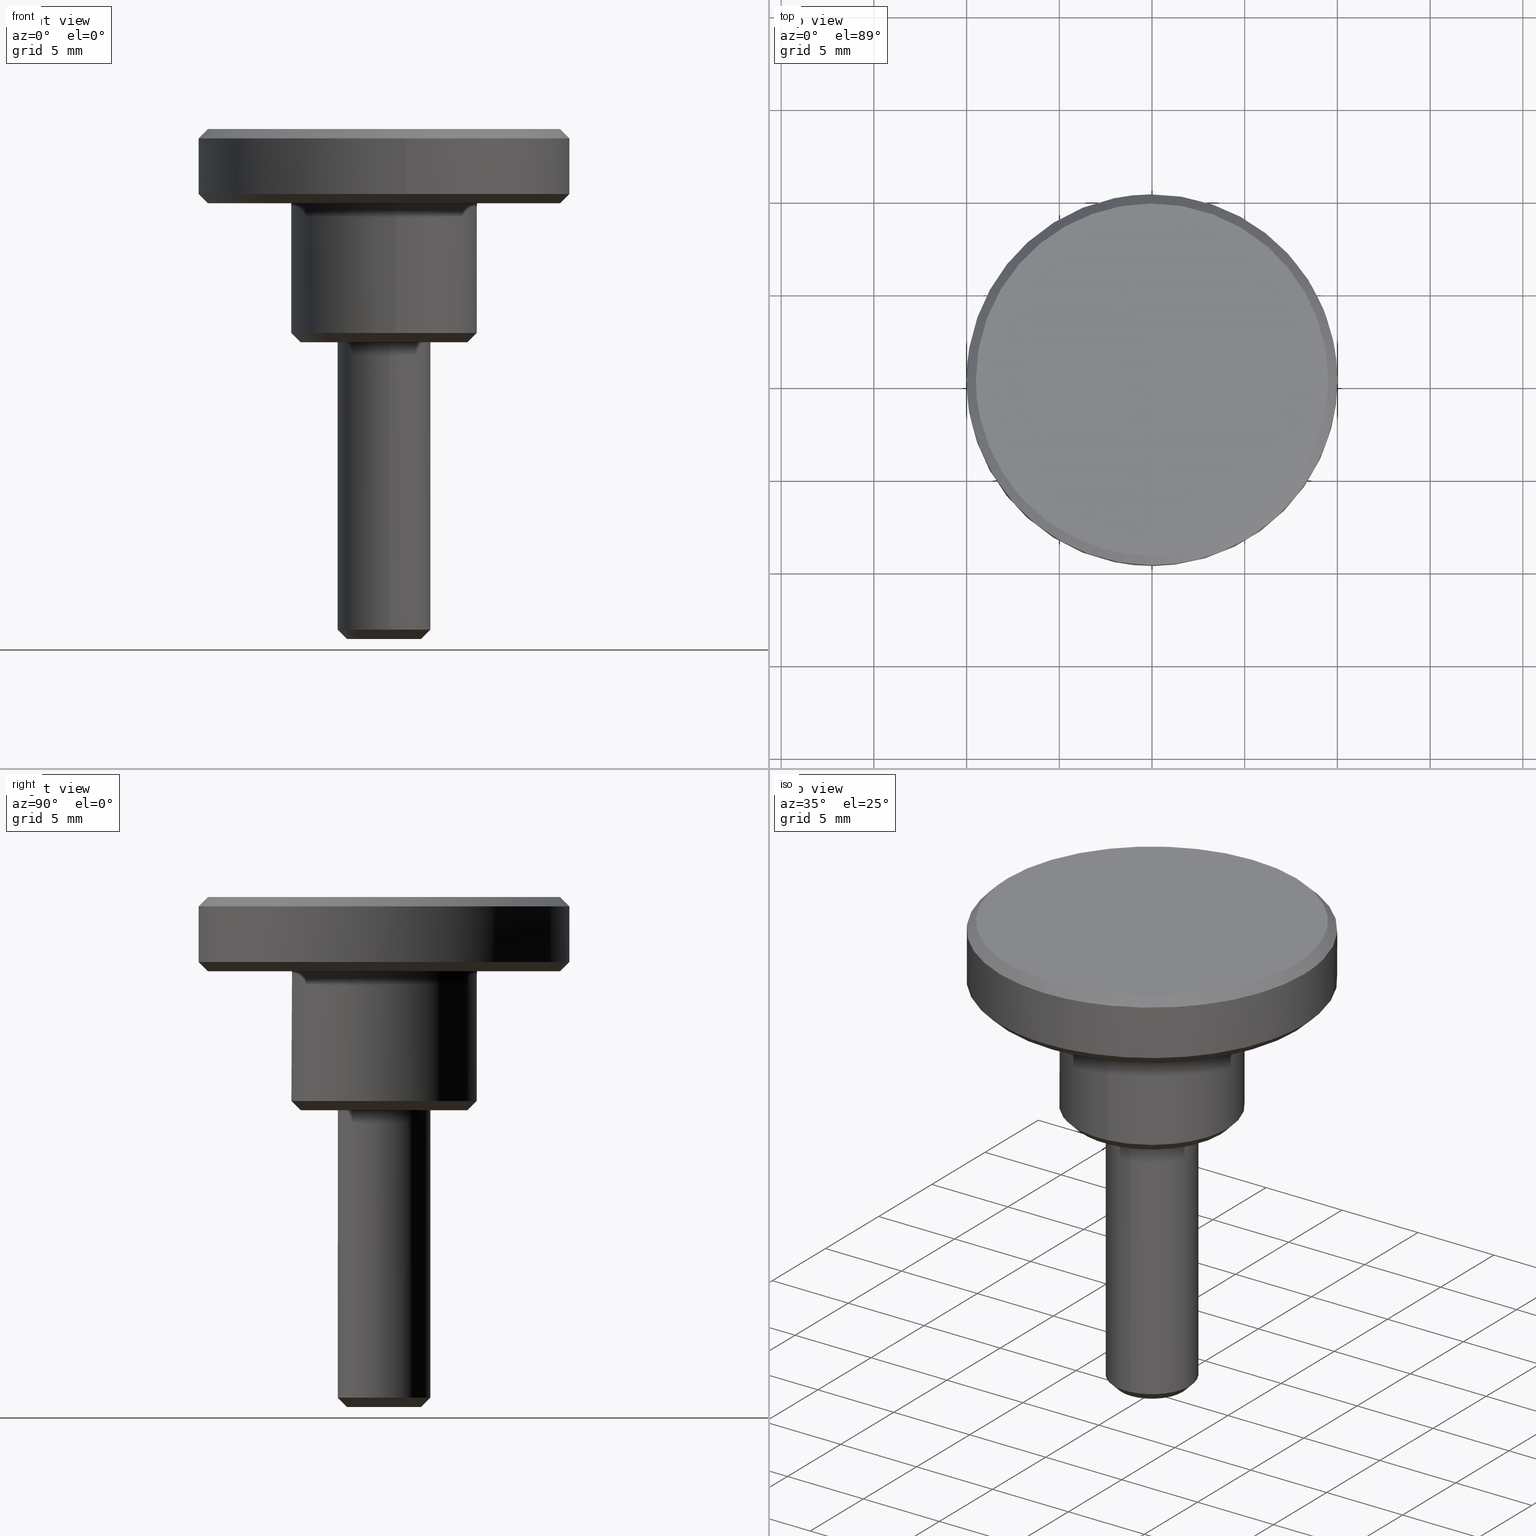
[diagram: canonical four-view strip — front | top / right | iso, engineering-drawing reading convention]
A machine part, canonical four-view strip (front | top / right | iso — engineering-drawing reading convention). The complete STEP part file that produces these views, byte-faithful:
ISO-10303-21;
HEADER;
/****************************************************************
 * Generated by software with PDE/Lib inside                    *
 * PDElib Version 4.4.1-0003, patched  Thursday August 19 11:58 *
 * International Technegroup Inc. (www.iti-oh.com)              *
 ****************************************************************/
FILE_DESCRIPTION((''),'2;1');
FILE_NAME('','2005-07-15T10:50:17',(''),(''),'','CADfix','');
FILE_SCHEMA(('AUTOMOTIVE_DESIGN'));
ENDSEC;
DATA;
#5=APPLICATION_CONTEXT('automotive design');
#6=APPLICATION_PROTOCOL_DEFINITION('Draft International Standard','automotive_design',1998,#5);
#7=PRODUCT_CONTEXT('None',#5,'mechanical');
#8=PRODUCT('knob','','None',(#7));
#9=PRODUCT_RELATED_PRODUCT_CATEGORY('part','description',(#8));
#10=PRODUCT_DEFINITION_FORMATION('None','None',#8);
#11=PRODUCT_DEFINITION_CONTEXT('part definition',#5,'design');
#12=PRODUCT_DEFINITION('None','None',#10,#11);
#18=(NAMED_UNIT(*)PLANE_ANGLE_UNIT()SI_UNIT($,.RADIAN.));
#19=DIMENSIONAL_EXPONENTS(0.0,0.0,0.0,0.0,0.0,0.0,0.0);
#20=PLANE_ANGLE_MEASURE_WITH_UNIT(PLANE_ANGLE_MEASURE(0.017453292500000),#18);
#24=(CONVERSION_BASED_UNIT('DEGREE',#20)NAMED_UNIT(#19)PLANE_ANGLE_UNIT());
#28=(NAMED_UNIT(*)SI_UNIT($,.STERADIAN.)SOLID_ANGLE_UNIT());
#32=(LENGTH_UNIT()NAMED_UNIT(*)SI_UNIT(.MILLI.,.METRE.));
#34=UNCERTAINTY_MEASURE_WITH_UNIT(LENGTH_MEASURE(0.001000000000000),#32,'DISTANCE_ACCURACY_VALUE','');
#36=(GEOMETRIC_REPRESENTATION_CONTEXT(3)GLOBAL_UNCERTAINTY_ASSIGNED_CONTEXT((#34))GLOBAL_UNIT_ASSIGNED_CONTEXT((#24,#28,#32))REPRESENTATION_CONTEXT('None','None'));
#37=AXIS2_PLACEMENT_3D('',#38,#39,#40);
#38=CARTESIAN_POINT('',(0.0,0.0,0.0));
#39=DIRECTION('',(0.0,0.0,1.0));
#40=DIRECTION('',(1.0,0.0,0.0));
#41=ADVANCED_BREP_SHAPE_REPRESENTATION('',(#37,#1267),#36);
#42=PRODUCT_DEFINITION_SHAPE('','',#12);
#43=SHAPE_DEFINITION_REPRESENTATION(#42,#41);
#44=CARTESIAN_POINT('',(-0.803378171075901,-1.817894321526624,-16.012499999999996));
#45=CARTESIAN_POINT('',(-0.411299006455437,-1.991165032843460,-16.012499999999996));
#46=CARTESIAN_POINT('',(0.017343989303018,-1.987424322090042,-16.012499999999999));
#47=CARTESIAN_POINT('',(2.004768311393060,-1.970080332787024,-16.012499999999996));
#48=CARTESIAN_POINT('',(1.987424322090042,0.017343989303018,-16.012499999999999));
#49=CARTESIAN_POINT('',(1.970080332787024,2.004768311393060,-16.012499999999996));
#50=CARTESIAN_POINT('',(-0.017343989303018,1.987424322090042,-16.012499999999999));
#51=CARTESIAN_POINT('',(-1.015717590192008,-2.298378653992966,-15.487187500000005));
#52=CARTESIAN_POINT('',(-0.520008696683662,-2.517446230989608,-15.487187500000001));
#53=CARTESIAN_POINT('',(0.021928147482007,-2.512716819799633,-15.487187499999999));
#54=CARTESIAN_POINT('',(2.534644967281641,-2.490788672317626,-15.487187499999992));
#55=CARTESIAN_POINT('',(2.512716819799633,0.021928147482007,-15.487187499999999));
#56=CARTESIAN_POINT('',(2.490788672317626,2.534644967281641,-15.487187499999992));
#57=CARTESIAN_POINT('',(-0.021928147482007,2.512716819799633,-15.487187499999999));
#65=(BOUNDED_SURFACE()B_SPLINE_SURFACE(2,1,((#44,#51),(#45,#52),(#46,#53),(#47,#54),(#48,#55),(#49,#56),(#50,#57)),.UNSPECIFIED.,.F.,.F.,.U.)B_SPLINE_SURFACE_WITH_KNOTS((3,2,2,3),(2,2),(0.0,1.165741939264695,5.329106008067175,9.492470076869655),(0.0,1.0),.UNSPECIFIED.)GEOMETRIC_REPRESENTATION_ITEM()RATIONAL_B_SPLINE_SURFACE(((0.881905454174416,0.881905454174416),(0.917989898732233,0.917989898732233),(1.0,1.0),(0.707106781186548,0.707106781186548),(1.0,1.0),(0.707106781186548,0.707106781186548),(1.0,1.0)))REPRESENTATION_ITEM('')SURFACE());
#66=CARTESIAN_POINT('',(-1.010538580020176,-2.286659523915468,-15.499999999995470));
#67=VERTEX_POINT('',#66);
#68=CARTESIAN_POINT('',(0.310320005219403,-2.480665534561366,-15.500000000000000));
#69=VERTEX_POINT('',#68);
#70=CARTESIAN_POINT('',(-1.010538580020176,-2.286659523915468,-15.499999999995474));
#71=CARTESIAN_POINT('',(-0.527789043185289,-2.500000000000000,-15.499999999999996));
#72=CARTESIAN_POINT('',(0.0,-2.500000000000000,-15.500000000000000));
#73=CARTESIAN_POINT('',(0.155762318853798,-2.500000000000000,-15.499999999999998));
#74=CARTESIAN_POINT('',(0.310320005219403,-2.480665534561366,-15.500000000000004));
#82=(BOUNDED_CURVE()B_SPLINE_CURVE(2,(#70,#71,#72,#73,#74),.UNSPECIFIED.,.F.,.U.)B_SPLINE_CURVE_WITH_KNOTS((3,2,3),(0.181361578453286,0.250000000000000,0.271473928973398),.UNSPECIFIED.)CURVE()GEOMETRIC_REPRESENTATION_ITEM()RATIONAL_B_SPLINE_CURVE((0.883326595744863,0.919585087115634,1.0,0.974841727289641,0.954005430269486))REPRESENTATION_ITEM(''));
#83=EDGE_CURVE('',#67,#69,#82,.T.);
#84=ORIENTED_EDGE('',*,*,#83,.F.);
#85=CARTESIAN_POINT('',(-0.808430864043085,-1.829327619123057,-15.999999999994030));
#86=VERTEX_POINT('',#85);
#87=CARTESIAN_POINT('',(-0.808430864043085,-1.829327619123057,-15.999999999994030));
#88=CARTESIAN_POINT('',(-1.010538580020176,-2.286659523915468,-15.499999999995470));
#89=QUASI_UNIFORM_CURVE('',1,(#87,#88),.UNSPECIFIED.,.F.,.U.);
#90=EDGE_CURVE('',#86,#67,#89,.T.);
#91=ORIENTED_EDGE('',*,*,#90,.F.);
#92=CARTESIAN_POINT('',(2.0,0.0,-16.0));
#93=VERTEX_POINT('',#92);
#94=CARTESIAN_POINT('',(2.0,0.0,-16.0));
#95=CARTESIAN_POINT('',(2.000000000000000,-2.000000000000000,-15.999999999999998));
#96=CARTESIAN_POINT('',(0.0,-2.0,-16.0));
#97=CARTESIAN_POINT('',(-0.422231234577905,-2.000000000000000,-16.000000000000004));
#98=CARTESIAN_POINT('',(-0.808430864043085,-1.829327619123057,-15.999999999994030));
#106=(BOUNDED_CURVE()B_SPLINE_CURVE(2,(#94,#95,#96,#97,#98),.UNSPECIFIED.,.F.,.U.)B_SPLINE_CURVE_WITH_KNOTS((3,2,3),(0.500000000000000,0.750000000000000,0.818638421551150),.UNSPECIFIED.)CURVE()GEOMETRIC_REPRESENTATION_ITEM()RATIONAL_B_SPLINE_CURVE((1.0,0.707106781186548,1.0,0.919585087110437,0.883326595740176))REPRESENTATION_ITEM(''));
#107=EDGE_CURVE('',#93,#86,#106,.T.);
#108=ORIENTED_EDGE('',*,*,#107,.F.);
#109=CARTESIAN_POINT('',(-0.017453071105066,1.999923846142167,-15.999999999985230));
#110=VERTEX_POINT('',#109);
#111=CARTESIAN_POINT('',(-0.017453071105066,1.999923846142167,-15.999999999985237));
#112=CARTESIAN_POINT('',(-0.008726701749599,2.000000000000000,-16.000000000000004));
#113=CARTESIAN_POINT('',(0.0,2.0,-16.0));
#114=CARTESIAN_POINT('',(2.000000000000000,2.000000000000000,-15.999999999999998));
#115=CARTESIAN_POINT('',(2.0,0.0,-16.0));
#123=(BOUNDED_CURVE()B_SPLINE_CURVE(2,(#111,#112,#113,#114,#115),.UNSPECIFIED.,.F.,.U.)B_SPLINE_CURVE_WITH_KNOTS((3,2,3),(0.248460105645955,0.250000000000000,0.500000000000000),.UNSPECIFIED.)CURVE()GEOMETRIC_REPRESENTATION_ITEM()RATIONAL_B_SPLINE_CURVE((0.996414028056301,0.998195901544045,1.0,0.707106781186548,1.0))REPRESENTATION_ITEM(''));
#124=EDGE_CURVE('',#110,#93,#123,.T.);
#125=ORIENTED_EDGE('',*,*,#124,.F.);
#126=CARTESIAN_POINT('',(-0.021816338757609,2.499904807660299,-15.500000000000000));
#127=VERTEX_POINT('',#126);
#128=CARTESIAN_POINT('',(-0.017453071105066,1.999923846142167,-15.999999999985230));
#129=CARTESIAN_POINT('',(-0.021816338757609,2.499904807660299,-15.500000000000000));
#130=QUASI_UNIFORM_CURVE('',1,(#128,#129),.UNSPECIFIED.,.F.,.U.);
#131=EDGE_CURVE('',#110,#127,#130,.T.);
#132=ORIENTED_EDGE('',*,*,#131,.T.);
#133=CARTESIAN_POINT('',(2.500000000000000,0.0,-15.500000000000000));
#134=VERTEX_POINT('',#133);
#135=CARTESIAN_POINT('',(2.500000000000000,0.0,-15.500000000000000));
#136=CARTESIAN_POINT('',(2.500000000000000,2.500000000000000,-15.500000000000004));
#137=CARTESIAN_POINT('',(0.0,2.500000000000000,-15.500000000000000));
#138=CARTESIAN_POINT('',(-0.010908377075104,2.500000000000000,-15.500000000000004));
#139=CARTESIAN_POINT('',(-0.021816338757609,2.499904807660299,-15.499999999999996));
#147=(BOUNDED_CURVE()B_SPLINE_CURVE(2,(#135,#136,#137,#138,#139),.UNSPECIFIED.,.F.,.U.)B_SPLINE_CURVE_WITH_KNOTS((3,2,3),(0.500000000000000,0.750000000000000,0.751539894338277),.UNSPECIFIED.)CURVE()GEOMETRIC_REPRESENTATION_ITEM()RATIONAL_B_SPLINE_CURVE((1.0,0.707106781186548,1.0,0.998195901562517,0.996414028092791))REPRESENTATION_ITEM(''));
#148=EDGE_CURVE('',#134,#127,#147,.T.);
#149=ORIENTED_EDGE('',*,*,#148,.F.);
#150=CARTESIAN_POINT('',(0.310320005219403,-2.480665534561366,-15.500000000000000));
#151=CARTESIAN_POINT('',(2.500000000000000,-2.206746500340018,-15.500000000000007));
#152=CARTESIAN_POINT('',(2.500000000000000,0.0,-15.500000000000000));
#160=(BOUNDED_CURVE()B_SPLINE_CURVE(2,(#150,#151,#152),.UNSPECIFIED.,.F.,.U.)B_SPLINE_CURVE_WITH_KNOTS((3,3),(0.271473928973397,0.500000000000000),.UNSPECIFIED.)CURVE()GEOMETRIC_REPRESENTATION_ITEM()RATIONAL_B_SPLINE_CURVE((0.954005430269486,0.732265053896907,1.0))REPRESENTATION_ITEM(''));
#161=EDGE_CURVE('',#69,#134,#160,.T.);
#162=ORIENTED_EDGE('',*,*,#161,.F.);
#163=EDGE_LOOP('',(#84,#91,#108,#125,#132,#149,#162));
#164=FACE_OUTER_BOUND('',#163,.T.);
#165=ADVANCED_FACE('',(#164),#65,.T.);
#166=CARTESIAN_POINT('',(-0.017343989303018,1.987424322090042,-16.012499999999999));
#167=CARTESIAN_POINT('',(-2.004768311393060,1.970080332787024,-16.012499999999996));
#168=CARTESIAN_POINT('',(-1.987424322090042,-0.017343989303018,-16.012499999999999));
#169=CARTESIAN_POINT('',(-1.976234449005829,-1.299576441141279,-16.012499999999989));
#170=CARTESIAN_POINT('',(-0.803378171075901,-1.817894321526624,-16.012499999999996));
#171=CARTESIAN_POINT('',(-0.021928147482007,2.512716819799633,-15.487187499999999));
#172=CARTESIAN_POINT('',(-2.534644967281641,2.490788672317626,-15.487187499999992));
#173=CARTESIAN_POINT('',(-2.512716819799633,-0.021928147482007,-15.487187499999999));
#174=CARTESIAN_POINT('',(-2.498569371769734,-1.643065120002641,-15.487187499999992));
#175=CARTESIAN_POINT('',(-1.015717590192008,-2.298378653992966,-15.487187500000005));
#183=(BOUNDED_SURFACE()B_SPLINE_SURFACE(2,1,((#166,#171),(#167,#172),(#168,#173),(#169,#174),(#170,#175)),.UNSPECIFIED.,.F.,.F.,.U.)B_SPLINE_SURFACE_WITH_KNOTS((3,2,3),(2,2),(0.0,4.163364068802480,7.160986198340265),(0.0,1.0),.UNSPECIFIED.)GEOMETRIC_REPRESENTATION_ITEM()RATIONAL_B_SPLINE_SURFACE(((1.0,1.0),(0.707106781186548,0.707106781186548),(1.0,1.0),(0.789116882454314,0.789116882454314),(0.881905454174416,0.881905454174416)))REPRESENTATION_ITEM('')SURFACE());
#184=CARTESIAN_POINT('',(-2.500000000000000,0.0,-15.500000000000000));
#185=VERTEX_POINT('',#184);
#186=CARTESIAN_POINT('',(-2.500000000000000,0.0,-15.500000000000000));
#187=CARTESIAN_POINT('',(-2.500000000000000,-1.628425006403278,-15.500000000000004));
#188=CARTESIAN_POINT('',(-1.010538580020176,-2.286659523915468,-15.499999999995476));
#196=(BOUNDED_CURVE()B_SPLINE_CURVE(2,(#186,#187,#188),.UNSPECIFIED.,.F.,.U.)B_SPLINE_CURVE_WITH_KNOTS((3,3),(0.0,0.181361578453286),.UNSPECIFIED.)CURVE()GEOMETRIC_REPRESENTATION_ITEM()RATIONAL_B_SPLINE_CURVE((1.0,0.787521694070914,0.883326595744862))REPRESENTATION_ITEM(''));
#197=EDGE_CURVE('',#185,#67,#196,.T.);
#198=ORIENTED_EDGE('',*,*,#197,.F.);
#199=CARTESIAN_POINT('',(-0.021816338757609,2.499904807660299,-15.499999999999996));
#200=CARTESIAN_POINT('',(-2.499999999999999,2.478278026441151,-15.499999999999998));
#201=CARTESIAN_POINT('',(-2.500000000000000,0.0,-15.500000000000000));
#209=(BOUNDED_CURVE()B_SPLINE_CURVE(2,(#199,#200,#201),.UNSPECIFIED.,.F.,.U.)B_SPLINE_CURVE_WITH_KNOTS((3,3),(0.751539894338277,1.0),.UNSPECIFIED.)CURVE()GEOMETRIC_REPRESENTATION_ITEM()RATIONAL_B_SPLINE_CURVE((0.996414028092791,0.708910879624030,1.0))REPRESENTATION_ITEM(''));
#210=EDGE_CURVE('',#127,#185,#209,.T.);
#211=ORIENTED_EDGE('',*,*,#210,.F.);
#212=ORIENTED_EDGE('',*,*,#131,.F.);
#213=CARTESIAN_POINT('',(-2.0,0.0,-16.0));
#214=VERTEX_POINT('',#213);
#215=CARTESIAN_POINT('',(-2.0,0.0,-16.0));
#216=CARTESIAN_POINT('',(-2.000000000000000,1.982622420975440,-16.000000000000004));
#217=CARTESIAN_POINT('',(-0.017453071105066,1.999923846142167,-15.999999999985228));
#225=(BOUNDED_CURVE()B_SPLINE_CURVE(2,(#215,#216,#217),.UNSPECIFIED.,.F.,.U.)B_SPLINE_CURVE_WITH_KNOTS((3,3),(0.0,0.248460105645955),.UNSPECIFIED.)CURVE()GEOMETRIC_REPRESENTATION_ITEM()RATIONAL_B_SPLINE_CURVE((1.0,0.708910879642503,0.996414028056301))REPRESENTATION_ITEM(''));
#226=EDGE_CURVE('',#214,#110,#225,.T.);
#227=ORIENTED_EDGE('',*,*,#226,.F.);
#228=CARTESIAN_POINT('',(-0.808430864043085,-1.829327619123057,-15.999999999994030));
#229=CARTESIAN_POINT('',(-2.0,-1.302740005082157,-15.999999999999995));
#230=CARTESIAN_POINT('',(-2.0,0.0,-16.0));
#238=(BOUNDED_CURVE()B_SPLINE_CURVE(2,(#228,#229,#230),.UNSPECIFIED.,.F.,.U.)B_SPLINE_CURVE_WITH_KNOTS((3,3),(0.818638421551150,1.0),.UNSPECIFIED.)CURVE()GEOMETRIC_REPRESENTATION_ITEM()RATIONAL_B_SPLINE_CURVE((0.883326595740175,0.787521694076112,1.0))REPRESENTATION_ITEM(''));
#239=EDGE_CURVE('',#86,#214,#238,.T.);
#240=ORIENTED_EDGE('',*,*,#239,.F.);
#241=ORIENTED_EDGE('',*,*,#90,.T.);
#242=EDGE_LOOP('',(#198,#211,#212,#227,#240,#241));
#243=FACE_OUTER_BOUND('',#242,.T.);
#244=ADVANCED_FACE('',(#243),#183,.T.);
#245=CARTESIAN_POINT('',(-9.242894728281831,-2.140456327958789,11.512500000000115));
#246=CARTESIAN_POINT('',(-9.496966249899218,-1.043327506833363,11.512500000000115));
#247=CARTESIAN_POINT('',(-9.487138745071267,0.082793005540822,11.512500000000120));
#248=CARTESIAN_POINT('',(-9.404345739530445,9.569931750612090,11.512500000000120));
#249=CARTESIAN_POINT('',(0.082793005540822,9.487138745071267,11.512500000000120));
#250=CARTESIAN_POINT('',(9.569931750612090,9.404345739530445,11.512500000000120));
#251=CARTESIAN_POINT('',(9.487138745071267,-0.082793005540822,11.512500000000120));
#252=CARTESIAN_POINT('',(9.404345739530445,-9.569931750612090,11.512500000000120));
#253=CARTESIAN_POINT('',(-0.082793005540822,-9.487138745071267,11.512500000000120));
#254=CARTESIAN_POINT('',(-9.754663701873520,-2.258971054154414,10.987187500000111));
#255=CARTESIAN_POINT('',(-10.022802885804440,-1.101095409962056,10.987187500000115));
#256=CARTESIAN_POINT('',(-10.012431242780981,0.087377163719812,10.987187500000120));
#257=CARTESIAN_POINT('',(-9.925054079061164,10.099808406500786,10.987187500000116));
#258=CARTESIAN_POINT('',(0.087377163719812,10.012431242780981,10.987187500000120));
#259=CARTESIAN_POINT('',(10.099808406500786,9.925054079061164,10.987187500000116));
#260=CARTESIAN_POINT('',(10.012431242780981,-0.087377163719812,10.987187500000120));
#261=CARTESIAN_POINT('',(9.925054079061164,-10.099808406500786,10.987187500000116));
#262=CARTESIAN_POINT('',(-0.087377163719812,-10.012431242780981,10.987187500000120));
#270=(BOUNDED_SURFACE()B_SPLINE_SURFACE(2,1,((#245,#254),(#246,#255),(#247,#256),(#248,#257),(#249,#258),(#250,#259),(#251,#260),(#252,#261),(#253,#262)),.UNSPECIFIED.,.F.,.F.,.U.)B_SPLINE_SURFACE_WITH_KNOTS((3,2,2,2,3),(2,2),(0.0,2.654363350399271,19.244134290394701,35.833905230390137,52.423676170385569),(0.0,1.0),.UNSPECIFIED.)GEOMETRIC_REPRESENTATION_ITEM()RATIONAL_B_SPLINE_SURFACE(((0.921270302782944,0.921270302782944),(0.953137084989848,0.953137084989848),(1.0,1.0),(0.707106781186548,0.707106781186548),(1.0,1.0),(0.707106781186548,0.707106781186548),(1.0,1.0),(0.707106781186548,0.707106781186548),(1.0,1.0)))REPRESENTATION_ITEM('')SURFACE());
#271=CARTESIAN_POINT('',(-9.742181531784189,-2.256080451091705,10.999999999998360));
#272=VERTEX_POINT('',#271);
#273=CARTESIAN_POINT('',(-10.0,0.0,11.000000000000121));
#274=VERTEX_POINT('',#273);
#275=CARTESIAN_POINT('',(-9.742181531784189,-2.256080451091705,10.999999999998366));
#276=CARTESIAN_POINT('',(-10.0,-1.142771606812818,11.000000000000115));
#277=CARTESIAN_POINT('',(-10.0,0.0,11.000000000000121));
#285=(BOUNDED_CURVE()B_SPLINE_CURVE(2,(#275,#276,#277),.UNSPECIFIED.,.F.,.U.)B_SPLINE_CURVE_WITH_KNOTS((3,3),(0.961422971784112,1.0),.UNSPECIFIED.)CURVE()GEOMETRIC_REPRESENTATION_ITEM()RATIONAL_B_SPLINE_CURVE((0.923556557441979,0.954804200134364,1.0))REPRESENTATION_ITEM(''));
#286=EDGE_CURVE('',#272,#274,#285,.T.);
#287=ORIENTED_EDGE('',*,*,#286,.F.);
#288=CARTESIAN_POINT('',(-9.255072455193631,-2.143276428548865,11.499999999997090));
#289=VERTEX_POINT('',#288);
#290=CARTESIAN_POINT('',(-9.255072455193631,-2.143276428548865,11.499999999997090));
#291=CARTESIAN_POINT('',(-9.742181531784189,-2.256080451091705,10.999999999998360));
#292=QUASI_UNIFORM_CURVE('',1,(#290,#291),.UNSPECIFIED.,.F.,.U.);
#293=EDGE_CURVE('',#289,#272,#292,.T.);
#294=ORIENTED_EDGE('',*,*,#293,.F.);
#295=CARTESIAN_POINT('',(-9.500000000000000,0.0,11.500000000000121));
#296=VERTEX_POINT('',#295);
#297=CARTESIAN_POINT('',(-9.500000000000000,0.0,11.500000000000121));
#298=CARTESIAN_POINT('',(-9.500000000000000,-1.085633026484052,11.500000000000123));
#299=CARTESIAN_POINT('',(-9.255072455193631,-2.143276428548865,11.499999999997096));
#307=(BOUNDED_CURVE()B_SPLINE_CURVE(2,(#297,#298,#299),.UNSPECIFIED.,.F.,.U.)B_SPLINE_CURVE_WITH_KNOTS((3,3),(0.500000000000000,0.538577028216291),.UNSPECIFIED.)CURVE()GEOMETRIC_REPRESENTATION_ITEM()RATIONAL_B_SPLINE_CURVE((1.0,0.954804200133892,0.923556557441326))REPRESENTATION_ITEM(''));
#308=EDGE_CURVE('',#296,#289,#307,.T.);
#309=ORIENTED_EDGE('',*,*,#308,.F.);
#310=CARTESIAN_POINT('',(9.500000000000000,0.0,11.500000000000121));
#311=VERTEX_POINT('',#310);
#312=CARTESIAN_POINT('',(9.500000000000000,0.0,11.500000000000121));
#313=CARTESIAN_POINT('',(9.500000000000000,9.500000000000000,11.500000000000119));
#314=CARTESIAN_POINT('',(0.0,9.500000000000000,11.500000000000121));
#315=CARTESIAN_POINT('',(-9.500000000000000,9.500000000000000,11.500000000000119));
#316=CARTESIAN_POINT('',(-9.500000000000000,0.0,11.500000000000121));
#324=(BOUNDED_CURVE()B_SPLINE_CURVE(2,(#312,#313,#314,#315,#316),.UNSPECIFIED.,.F.,.U.)B_SPLINE_CURVE_WITH_KNOTS((3,2,3),(0.0,0.250000000000000,0.500000000000000),.UNSPECIFIED.)CURVE()GEOMETRIC_REPRESENTATION_ITEM()RATIONAL_B_SPLINE_CURVE((1.0,0.707106781186548,1.0,0.707106781186548,1.0))REPRESENTATION_ITEM(''));
#325=EDGE_CURVE('',#311,#296,#324,.T.);
#326=ORIENTED_EDGE('',*,*,#325,.F.);
#327=CARTESIAN_POINT('',(-0.082902087263309,-9.499638269113273,11.499999999996200));
#328=VERTEX_POINT('',#327);
#329=CARTESIAN_POINT('',(-0.082902087263309,-9.499638269113273,11.499999999996199));
#330=CARTESIAN_POINT('',(-0.041451832825389,-9.500000000000002,11.500000000000121));
#331=CARTESIAN_POINT('',(0.0,-9.500000000000000,11.500000000000121));
#332=CARTESIAN_POINT('',(9.500000000000000,-9.500000000000000,11.500000000000119));
#333=CARTESIAN_POINT('',(9.500000000000000,0.0,11.500000000000121));
#341=(BOUNDED_CURVE()B_SPLINE_CURVE(2,(#329,#330,#331,#332,#333),.UNSPECIFIED.,.F.,.U.)B_SPLINE_CURVE_WITH_KNOTS((3,2,3),(0.748460105663948,0.750000000000000,1.0),.UNSPECIFIED.)CURVE()GEOMETRIC_REPRESENTATION_ITEM()RATIONAL_B_SPLINE_CURVE((0.996414028097941,0.998195901565124,1.0,0.707106781186548,1.0))REPRESENTATION_ITEM(''));
#342=EDGE_CURVE('',#328,#311,#341,.T.);
#343=ORIENTED_EDGE('',*,*,#342,.F.);
#344=CARTESIAN_POINT('',(-0.087265355018777,-9.999619230646168,10.999999999995360));
#345=VERTEX_POINT('',#344);
#346=CARTESIAN_POINT('',(-0.082902087263309,-9.499638269113273,11.499999999996200));
#347=CARTESIAN_POINT('',(-0.087265355018777,-9.999619230646168,10.999999999995360));
#348=QUASI_UNIFORM_CURVE('',1,(#346,#347),.UNSPECIFIED.,.F.,.U.);
#349=EDGE_CURVE('',#328,#345,#348,.T.);
#350=ORIENTED_EDGE('',*,*,#349,.T.);
#351=CARTESIAN_POINT('',(1.241277931634470,-9.922662399599856,11.000000000000160));
#352=VERTEX_POINT('',#351);
#353=CARTESIAN_POINT('',(1.241277931634471,-9.922662399599856,11.000000000000162));
#354=CARTESIAN_POINT('',(0.623048218524957,-10.0,11.000000000000123));
#355=CARTESIAN_POINT('',(0.0,-10.0,11.000000000000121));
#356=CARTESIAN_POINT('',(-0.043633508242023,-10.0,11.000000000000121));
#357=CARTESIAN_POINT('',(-0.087265355018777,-9.999619230646168,10.999999999995355));
#365=(BOUNDED_CURVE()B_SPLINE_CURVE(2,(#353,#354,#355,#356,#357),.UNSPECIFIED.,.F.,.U.)B_SPLINE_CURVE_WITH_KNOTS((3,2,3),(0.728526106536804,0.750000000000000,0.751539894336220),.UNSPECIFIED.)CURVE()GEOMETRIC_REPRESENTATION_ITEM()RATIONAL_B_SPLINE_CURVE((0.954005499181070,0.974841768892429,1.0,0.998195901564927,0.996414028097552))REPRESENTATION_ITEM(''));
#366=EDGE_CURVE('',#352,#345,#365,.T.);
#367=ORIENTED_EDGE('',*,*,#366,.F.);
#368=CARTESIAN_POINT('',(10.0,0.0,11.000000000000121));
#369=VERTEX_POINT('',#368);
#370=CARTESIAN_POINT('',(10.0,0.0,11.000000000000121));
#371=CARTESIAN_POINT('',(10.0,-8.826987874462516,11.000000000000121));
#372=CARTESIAN_POINT('',(1.241277931634471,-9.922662399599856,11.000000000000162));
#380=(BOUNDED_CURVE()B_SPLINE_CURVE(2,(#370,#371,#372),.UNSPECIFIED.,.F.,.U.)B_SPLINE_CURVE_WITH_KNOTS((3,3),(0.500000000000000,0.728526106536804),.UNSPECIFIED.)CURVE()GEOMETRIC_REPRESENTATION_ITEM()RATIONAL_B_SPLINE_CURVE((1.0,0.732265012294119,0.954005499181070))REPRESENTATION_ITEM(''));
#381=EDGE_CURVE('',#369,#352,#380,.T.);
#382=ORIENTED_EDGE('',*,*,#381,.F.);
#383=CARTESIAN_POINT('',(-0.087256569852172,9.999619307300673,11.000000000000121));
#384=VERTEX_POINT('',#383);
#385=CARTESIAN_POINT('',(-0.087256569852172,9.999619307300673,11.000000000000124));
#386=CARTESIAN_POINT('',(-0.043629115390380,9.999999999999998,11.000000000000119));
#387=CARTESIAN_POINT('',(0.0,10.0,11.000000000000121));
#388=CARTESIAN_POINT('',(10.000000000000002,10.000000000000002,11.000000000000119));
#389=CARTESIAN_POINT('',(10.0,0.0,11.000000000000121));
#397=(BOUNDED_CURVE()B_SPLINE_CURVE(2,(#385,#386,#387,#388,#389),.UNSPECIFIED.,.F.,.U.)B_SPLINE_CURVE_WITH_KNOTS((3,2,3),(0.248460260414681,0.250000000000000,0.500000000000000),.UNSPECIFIED.)CURVE()GEOMETRIC_REPRESENTATION_ITEM()RATIONAL_B_SPLINE_CURVE((0.996414386234719,0.998196082866885,1.0,0.707106781186548,1.0))REPRESENTATION_ITEM(''));
#398=EDGE_CURVE('',#384,#369,#397,.T.);
#399=ORIENTED_EDGE('',*,*,#398,.F.);
#400=CARTESIAN_POINT('',(-10.0,0.0,11.000000000000121));
#401=CARTESIAN_POINT('',(-10.000000000000002,9.913120815416164,11.000000000000119));
#402=CARTESIAN_POINT('',(-0.087256569852172,9.999619307300673,11.000000000000124));
#410=(BOUNDED_CURVE()B_SPLINE_CURVE(2,(#400,#401,#402),.UNSPECIFIED.,.F.,.U.)B_SPLINE_CURVE_WITH_KNOTS((3,3),(0.0,0.248460260414681),.UNSPECIFIED.)CURVE()GEOMETRIC_REPRESENTATION_ITEM()RATIONAL_B_SPLINE_CURVE((1.0,0.708910698319662,0.996414386234719))REPRESENTATION_ITEM(''));
#411=EDGE_CURVE('',#274,#384,#410,.T.);
#412=ORIENTED_EDGE('',*,*,#411,.F.);
#413=EDGE_LOOP('',(#287,#294,#309,#326,#343,#350,#367,#382,#399,#412));
#414=FACE_OUTER_BOUND('',#413,.T.);
#415=ADVANCED_FACE('',(#414),#270,.T.);
#416=CARTESIAN_POINT('',(-0.082793005540822,-9.487138745071267,11.512500000000120));
#417=CARTESIAN_POINT('',(-7.556664895367825,-9.421915253203679,11.512500000000120));
#418=CARTESIAN_POINT('',(-9.242894728281831,-2.140456327958789,11.512500000000115));
#419=CARTESIAN_POINT('',(-0.087377163719812,-10.012431242780981,10.987187500000120));
#420=CARTESIAN_POINT('',(-7.975069167077800,-9.943596397493447,10.987187500000118));
#421=CARTESIAN_POINT('',(-9.754663701873520,-2.258971054154414,10.987187500000111));
#429=(BOUNDED_SURFACE()B_SPLINE_SURFACE(2,1,((#416,#419),(#417,#420),(#418,#421)),.UNSPECIFIED.,.F.,.F.,.U.)B_SPLINE_SURFACE_WITH_KNOTS((3,3),(2,2),(0.0,13.874467244310500),(0.0,1.0),.UNSPECIFIED.)GEOMETRIC_REPRESENTATION_ITEM()RATIONAL_B_SPLINE_SURFACE(((1.0,1.0),(0.753969696196700,0.753969696196700),(0.921270302782944,0.921270302782944)))REPRESENTATION_ITEM('')SURFACE());
#430=CARTESIAN_POINT('',(-0.087265355018777,-9.999619230646168,10.999999999995355));
#431=CARTESIAN_POINT('',(-7.964864184829107,-9.930872467089873,11.000000000000121));
#432=CARTESIAN_POINT('',(-9.742181531784189,-2.256080451091705,10.999999999998369));
#440=(BOUNDED_CURVE()B_SPLINE_CURVE(2,(#430,#431,#432),.UNSPECIFIED.,.F.,.U.)B_SPLINE_CURVE_WITH_KNOTS((3,3),(0.751539894336220,0.961422971784112),.UNSPECIFIED.)CURVE()GEOMETRIC_REPRESENTATION_ITEM()RATIONAL_B_SPLINE_CURVE((0.996414028097553,0.753549905437383,0.923556557441980))REPRESENTATION_ITEM(''));
#441=EDGE_CURVE('',#345,#272,#440,.T.);
#442=ORIENTED_EDGE('',*,*,#441,.F.);
#443=ORIENTED_EDGE('',*,*,#349,.F.);
#444=CARTESIAN_POINT('',(-9.255072455193629,-2.143276428548865,11.499999999997089));
#445=CARTESIAN_POINT('',(-7.566620975566935,-9.434328843742732,11.500000000000121));
#446=CARTESIAN_POINT('',(-0.082902087263309,-9.499638269113273,11.499999999996191));
#454=(BOUNDED_CURVE()B_SPLINE_CURVE(2,(#444,#445,#446),.UNSPECIFIED.,.F.,.U.)B_SPLINE_CURVE_WITH_KNOTS((3,3),(0.538577028216292,0.748460105663949),.UNSPECIFIED.)CURVE()GEOMETRIC_REPRESENTATION_ITEM()RATIONAL_B_SPLINE_CURVE((0.923556557441325,0.753549905437714,0.996414028097943))REPRESENTATION_ITEM(''));
#455=EDGE_CURVE('',#289,#328,#454,.T.);
#456=ORIENTED_EDGE('',*,*,#455,.F.);
#457=ORIENTED_EDGE('',*,*,#293,.T.);
#458=EDGE_LOOP('',(#442,#443,#456,#457));
#459=FACE_OUTER_BOUND('',#458,.T.);
#460=ADVANCED_FACE('',(#459),#429,.T.);
#461=CARTESIAN_POINT('',(7.768992244344123,-5.445678631476790,7.487500000000110));
#462=CARTESIAN_POINT('',(9.513663739762109,-2.956670330751032,7.487500000000109));
#463=CARTESIAN_POINT('',(9.487138745071432,0.082793005540823,7.487500000000109));
#464=CARTESIAN_POINT('',(9.404345739530609,9.569931750612255,7.487500000000108));
#465=CARTESIAN_POINT('',(-0.082793005540823,9.487138745071432,7.487500000000109));
#466=CARTESIAN_POINT('',(-9.569931750612255,9.404345739530609,7.487500000000108));
#467=CARTESIAN_POINT('',(-9.487138745071432,-0.082793005540823,7.487500000000109));
#468=CARTESIAN_POINT('',(-9.404345739530609,-9.569931750612255,7.487500000000108));
#469=CARTESIAN_POINT('',(0.082793005540823,-9.487138745071432,7.487500000000109));
#470=CARTESIAN_POINT('',(8.199152849177494,-5.747199902211691,8.012812500000123));
#471=CARTESIAN_POINT('',(10.040424897421483,-3.120377933715197,8.012812500000122));
#472=CARTESIAN_POINT('',(10.012431242781030,0.087377163719812,8.012812500000122));
#473=CARTESIAN_POINT('',(9.925054079061221,10.099808406500847,8.012812500000122));
#474=CARTESIAN_POINT('',(-0.087377163719812,10.012431242781030,8.012812500000122));
#475=CARTESIAN_POINT('',(-10.099808406500847,9.925054079061221,8.012812500000122));
#476=CARTESIAN_POINT('',(-10.012431242781030,-0.087377163719812,8.012812500000122));
#477=CARTESIAN_POINT('',(-9.925054079061221,-10.099808406500847,8.012812500000122));
#478=CARTESIAN_POINT('',(0.087377163719812,-10.012431242781030,8.012812500000122));
#486=(BOUNDED_SURFACE()B_SPLINE_SURFACE(2,1,((#461,#470),(#462,#471),(#463,#472),(#464,#473),(#465,#474),(#466,#475),(#467,#476),(#468,#477),(#469,#478)),.UNSPECIFIED.,.F.,.F.,.U.)B_SPLINE_SURFACE_WITH_KNOTS((3,2,2,2,3),(2,2),(0.0,6.635908375998210,23.225679315993730,39.815450255989262,56.405221195984780),(0.0,1.0),.UNSPECIFIED.)GEOMETRIC_REPRESENTATION_ITEM()RATIONAL_B_SPLINE_SURFACE(((0.859411254969543,0.859411254969543),(0.882842712474619,0.882842712474619),(1.0,1.0),(0.707106781186548,0.707106781186548),(1.0,1.0),(0.707106781186548,0.707106781186548),(1.0,1.0),(0.707106781186548,0.707106781186548),(1.0,1.0)))REPRESENTATION_ITEM('')SURFACE());
#487=CARTESIAN_POINT('',(9.500000000000000,0.0,7.500000000000110));
#488=VERTEX_POINT('',#487);
#489=CARTESIAN_POINT('',(7.779228070751314,-5.452853438635381,7.500000000000211));
#490=VERTEX_POINT('',#489);
#491=CARTESIAN_POINT('',(9.500000000000000,0.0,7.500000000000110));
#492=CARTESIAN_POINT('',(9.500000000000000,-2.997941080177659,7.500000000000109));
#493=CARTESIAN_POINT('',(7.779228070751313,-5.452853438635380,7.500000000000211));
#501=(BOUNDED_CURVE()B_SPLINE_CURVE(2,(#491,#492,#493),.UNSPECIFIED.,.F.,.U.)B_SPLINE_CURVE_WITH_KNOTS((3,3),(0.0,0.098673726202969),.UNSPECIFIED.)CURVE()GEOMETRIC_REPRESENTATION_ITEM()RATIONAL_B_SPLINE_CURVE((1.0,0.884396538880381,0.860049271925824))REPRESENTATION_ITEM(''));
#502=EDGE_CURVE('',#488,#490,#501,.T.);
#503=ORIENTED_EDGE('',*,*,#502,.F.);
#504=CARTESIAN_POINT('',(-9.500000000000000,0.0,7.500000000000110));
#505=VERTEX_POINT('',#504);
#506=CARTESIAN_POINT('',(-9.500000000000000,0.0,7.500000000000110));
#507=CARTESIAN_POINT('',(-9.500000000000000,9.500000000000000,7.500000000000110));
#508=CARTESIAN_POINT('',(0.0,9.500000000000000,7.500000000000110));
#509=CARTESIAN_POINT('',(9.500000000000000,9.500000000000000,7.500000000000110));
#510=CARTESIAN_POINT('',(9.500000000000000,0.0,7.500000000000110));
#518=(BOUNDED_CURVE()B_SPLINE_CURVE(2,(#506,#507,#508,#509,#510),.UNSPECIFIED.,.F.,.U.)B_SPLINE_CURVE_WITH_KNOTS((3,2,3),(0.500000000000000,0.750000000000000,1.0),.UNSPECIFIED.)CURVE()GEOMETRIC_REPRESENTATION_ITEM()RATIONAL_B_SPLINE_CURVE((1.0,0.707106781186548,1.0,0.707106781186548,1.0))REPRESENTATION_ITEM(''));
#519=EDGE_CURVE('',#505,#488,#518,.T.);
#520=ORIENTED_EDGE('',*,*,#519,.F.);
#521=CARTESIAN_POINT('',(0.082902087263308,-9.499638269113314,7.500000000003994));
#522=VERTEX_POINT('',#521);
#523=CARTESIAN_POINT('',(0.082902087263308,-9.499638269113314,7.500000000003994));
#524=CARTESIAN_POINT('',(0.041451832825388,-9.500000000000000,7.500000000000110));
#525=CARTESIAN_POINT('',(0.0,-9.500000000000000,7.500000000000110));
#526=CARTESIAN_POINT('',(-9.500000000000000,-9.500000000000000,7.500000000000110));
#527=CARTESIAN_POINT('',(-9.500000000000000,0.0,7.500000000000110));
#535=(BOUNDED_CURVE()B_SPLINE_CURVE(2,(#523,#524,#525,#526,#527),.UNSPECIFIED.,.F.,.U.)B_SPLINE_CURVE_WITH_KNOTS((3,2,3),(0.248460105663948,0.250000000000000,0.500000000000000),.UNSPECIFIED.)CURVE()GEOMETRIC_REPRESENTATION_ITEM()RATIONAL_B_SPLINE_CURVE((0.996414028097941,0.998195901565124,1.0,0.707106781186548,1.0))REPRESENTATION_ITEM(''));
#536=EDGE_CURVE('',#522,#505,#535,.T.);
#537=ORIENTED_EDGE('',*,*,#536,.F.);
#538=CARTESIAN_POINT('',(0.087265354983874,-9.999619230641745,8.000000000000121));
#539=VERTEX_POINT('',#538);
#540=CARTESIAN_POINT('',(0.082902087263308,-9.499638269113314,7.500000000003994));
#541=CARTESIAN_POINT('',(0.087265354983874,-9.999619230641745,8.000000000000121));
#542=QUASI_UNIFORM_CURVE('',1,(#540,#541),.UNSPECIFIED.,.F.,.U.);
#543=EDGE_CURVE('',#522,#539,#542,.T.);
#544=ORIENTED_EDGE('',*,*,#543,.T.);
#545=CARTESIAN_POINT('',(-10.0,0.0,8.000000000000119));
#546=VERTEX_POINT('',#545);
#547=CARTESIAN_POINT('',(-10.0,0.0,8.000000000000119));
#548=CARTESIAN_POINT('',(-10.000000000000002,-10.000000000000002,8.000000000000119));
#549=CARTESIAN_POINT('',(0.0,-10.0,8.000000000000119));
#550=CARTESIAN_POINT('',(0.043633508207148,-10.0,8.000000000000119));
#551=CARTESIAN_POINT('',(0.087265354983874,-9.999619230641745,8.000000000000121));
#559=(BOUNDED_CURVE()B_SPLINE_CURVE(2,(#547,#548,#549,#550,#551),.UNSPECIFIED.,.F.,.U.)B_SPLINE_CURVE_WITH_KNOTS((3,2,3),(0.0,0.250000000000000,0.251539894334992),.UNSPECIFIED.)CURVE()GEOMETRIC_REPRESENTATION_ITEM()RATIONAL_B_SPLINE_CURVE((1.0,0.707106781186548,1.0,0.998195901566367,0.996414028100395))REPRESENTATION_ITEM(''));
#560=EDGE_CURVE('',#546,#539,#559,.T.);
#561=ORIENTED_EDGE('',*,*,#560,.F.);
#562=CARTESIAN_POINT('',(-0.087256366048750,9.999619309078877,8.000000000000119));
#563=VERTEX_POINT('',#562);
#564=CARTESIAN_POINT('',(-0.087256366048750,9.999619309078877,8.000000000000119));
#565=CARTESIAN_POINT('',(-10.0,9.913121017464341,8.000000000000119));
#566=CARTESIAN_POINT('',(-10.0,0.0,8.000000000000119));
#574=(BOUNDED_CURVE()B_SPLINE_CURVE(2,(#564,#565,#566),.UNSPECIFIED.,.F.,.U.)B_SPLINE_CURVE_WITH_KNOTS((3,3),(0.751539735995331,1.0),.UNSPECIFIED.)CURVE()GEOMETRIC_REPRESENTATION_ITEM()RATIONAL_B_SPLINE_CURVE((0.996414394542968,0.708910694113730,1.0))REPRESENTATION_ITEM(''));
#575=EDGE_CURVE('',#563,#546,#574,.T.);
#576=ORIENTED_EDGE('',*,*,#575,.F.);
#577=CARTESIAN_POINT('',(10.0,0.0,8.000000000000119));
#578=VERTEX_POINT('',#577);
#579=CARTESIAN_POINT('',(10.0,0.0,8.000000000000119));
#580=CARTESIAN_POINT('',(10.000000000000002,10.000000000000002,8.000000000000119));
#581=CARTESIAN_POINT('',(0.0,10.0,8.000000000000119));
#582=CARTESIAN_POINT('',(-0.043629013482850,10.000000000000002,8.000000000000119));
#583=CARTESIAN_POINT('',(-0.087256366048750,9.999619309078877,8.000000000000119));
#591=(BOUNDED_CURVE()B_SPLINE_CURVE(2,(#579,#580,#581,#582,#583),.UNSPECIFIED.,.F.,.U.)B_SPLINE_CURVE_WITH_KNOTS((3,2,3),(0.500000000000000,0.750000000000000,0.751539735995331),.UNSPECIFIED.)CURVE()GEOMETRIC_REPRESENTATION_ITEM()RATIONAL_B_SPLINE_CURVE((1.0,0.707106781186548,1.0,0.998196087072818,0.996414394542968))REPRESENTATION_ITEM(''));
#592=EDGE_CURVE('',#578,#563,#591,.T.);
#593=ORIENTED_EDGE('',*,*,#592,.F.);
#594=CARTESIAN_POINT('',(8.188661127107476,-5.739845724878030,8.000000000000172));
#595=VERTEX_POINT('',#594);
#596=CARTESIAN_POINT('',(8.188661127107476,-5.739845724878030,8.000000000000172));
#597=CARTESIAN_POINT('',(10.0,-3.155727452816878,8.000000000000119));
#598=CARTESIAN_POINT('',(10.0,0.0,8.000000000000119));
#606=(BOUNDED_CURVE()B_SPLINE_CURVE(2,(#596,#597,#598),.UNSPECIFIED.,.F.,.U.)B_SPLINE_CURVE_WITH_KNOTS((3,3),(0.401326273797079,0.500000000000000),.UNSPECIFIED.)CURVE()GEOMETRIC_REPRESENTATION_ITEM()RATIONAL_B_SPLINE_CURVE((0.860049271925847,0.884396538880436,1.0))REPRESENTATION_ITEM(''));
#607=EDGE_CURVE('',#595,#578,#606,.T.);
#608=ORIENTED_EDGE('',*,*,#607,.F.);
#609=CARTESIAN_POINT('',(7.779228070751314,-5.452853438635381,7.500000000000211));
#610=CARTESIAN_POINT('',(8.188661127107476,-5.739845724878030,8.000000000000172));
#611=QUASI_UNIFORM_CURVE('',1,(#609,#610),.UNSPECIFIED.,.F.,.U.);
#612=EDGE_CURVE('',#490,#595,#611,.T.);
#613=ORIENTED_EDGE('',*,*,#612,.F.);
#614=EDGE_LOOP('',(#503,#520,#537,#544,#561,#576,#593,#608,#613));
#615=FACE_OUTER_BOUND('',#614,.T.);
#616=ADVANCED_FACE('',(#615),#486,.T.);
#617=CARTESIAN_POINT('',(0.082793005540823,-9.487138745071432,7.487500000000109));
#618=CARTESIAN_POINT('',(4.966000022812007,-9.444523643036803,7.487500000000109));
#619=CARTESIAN_POINT('',(7.768992244344123,-5.445678631476790,7.487500000000110));
#620=CARTESIAN_POINT('',(0.087377163719812,-10.012431242781030,8.012812500000122));
#621=CARTESIAN_POINT('',(5.240962013534871,-9.967456589148242,8.012812500000123));
#622=CARTESIAN_POINT('',(8.199152849177494,-5.747199902211691,8.012812500000123));
#630=(BOUNDED_SURFACE()B_SPLINE_SURFACE(2,1,((#617,#620),(#618,#621),(#619,#622)),.UNSPECIFIED.,.F.,.F.,.U.)B_SPLINE_SURFACE_WITH_KNOTS((3,3),(2,2),(0.0,9.886015678606007),(0.0,1.0),.UNSPECIFIED.)GEOMETRIC_REPRESENTATION_ITEM()RATIONAL_B_SPLINE_SURFACE(((1.0,1.0),(0.824264068711928,0.824264068711928),(0.859411254969543,0.859411254969543)))REPRESENTATION_ITEM('')SURFACE());
#631=CARTESIAN_POINT('',(7.779228070751313,-5.452853438635380,7.500000000000211));
#632=CARTESIAN_POINT('',(4.972542842358388,-9.456967020665786,7.500000000000111));
#633=CARTESIAN_POINT('',(0.082902087263308,-9.499638269113314,7.500000000003994));
#641=(BOUNDED_CURVE()B_SPLINE_CURVE(2,(#631,#632,#633),.UNSPECIFIED.,.F.,.U.)B_SPLINE_CURVE_WITH_KNOTS((3,3),(0.098673726202969,0.248460105663948),.UNSPECIFIED.)CURVE()GEOMETRIC_REPRESENTATION_ITEM()RATIONAL_B_SPLINE_CURVE((0.860049271925824,0.823090203820994,0.996414028097941))REPRESENTATION_ITEM(''));
#642=EDGE_CURVE('',#490,#522,#641,.T.);
#643=ORIENTED_EDGE('',*,*,#642,.F.);
#644=ORIENTED_EDGE('',*,*,#612,.T.);
#645=CARTESIAN_POINT('',(1.241271863740393,-9.922663158659514,8.000000000000119));
#646=VERTEX_POINT('',#645);
#647=CARTESIAN_POINT('',(1.241271863740394,-9.922663158659514,8.000000000000121));
#648=CARTESIAN_POINT('',(5.642648680511572,-9.372074559914664,8.000000000000119));
#649=CARTESIAN_POINT('',(8.188661127107476,-5.739845724878030,8.000000000000172));
#657=(BOUNDED_CURVE()B_SPLINE_CURVE(2,(#647,#648,#649),.UNSPECIFIED.,.F.,.U.)B_SPLINE_CURVE_WITH_KNOTS((3,3),(0.271473790333043,0.401326273797079),.UNSPECIFIED.)CURVE()GEOMETRIC_REPRESENTATION_ITEM()RATIONAL_B_SPLINE_CURVE((0.954005699316995,0.828008796702347,0.860049271925848))REPRESENTATION_ITEM(''));
#658=EDGE_CURVE('',#646,#595,#657,.T.);
#659=ORIENTED_EDGE('',*,*,#658,.F.);
#660=CARTESIAN_POINT('',(0.087265354983874,-9.999619230641745,8.000000000000121));
#661=CARTESIAN_POINT('',(0.666497465630396,-9.994564348591922,8.000000000000117));
#662=CARTESIAN_POINT('',(1.241271863740394,-9.922663158659514,8.000000000000121));
#670=(BOUNDED_CURVE()B_SPLINE_CURVE(2,(#660,#661,#662),.UNSPECIFIED.,.F.,.U.)B_SPLINE_CURVE_WITH_KNOTS((3,3),(0.251539894334992,0.271473790333043),.UNSPECIFIED.)CURVE()GEOMETRIC_REPRESENTATION_ITEM()RATIONAL_B_SPLINE_CURVE((0.996414028100395,0.973347717935318,0.954005699316995))REPRESENTATION_ITEM(''));
#671=EDGE_CURVE('',#539,#646,#670,.T.);
#672=ORIENTED_EDGE('',*,*,#671,.F.);
#673=ORIENTED_EDGE('',*,*,#543,.F.);
#674=EDGE_LOOP('',(#643,#644,#659,#672,#673));
#675=FACE_OUTER_BOUND('',#674,.T.);
#676=ADVANCED_FACE('',(#675),#630,.T.);
#677=CARTESIAN_POINT('',(-1.813916751045586,-4.104553845459481,-0.012499999999999));
#678=CARTESIAN_POINT('',(-0.928656247279884,-4.495775137049067,-0.012499999999999));
#679=CARTESIAN_POINT('',(0.039160328048953,-4.487329129750467,-0.012499999999999));
#680=CARTESIAN_POINT('',(4.526489457799420,-4.448168801701514,-0.012499999999999));
#681=CARTESIAN_POINT('',(4.487329129750467,0.039160328048953,-0.012499999999999));
#682=CARTESIAN_POINT('',(4.448168801701514,4.526489457799420,-0.012499999999999));
#683=CARTESIAN_POINT('',(-0.039160328048953,4.487329129750467,-0.012499999999999));
#684=CARTESIAN_POINT('',(-2.026256170161715,-4.585038177925872,0.512812499999944));
#685=CARTESIAN_POINT('',(-1.037365937508121,-5.022056335195270,0.512812499999944));
#686=CARTESIAN_POINT('',(0.043744486227942,-5.012621627460113,0.512812499999944));
#687=CARTESIAN_POINT('',(5.056366113688056,-4.968877141232172,0.512812499999944));
#688=CARTESIAN_POINT('',(5.012621627460113,0.043744486227942,0.512812499999944));
#689=CARTESIAN_POINT('',(4.968877141232172,5.056366113688056,0.512812499999944));
#690=CARTESIAN_POINT('',(-0.043744486227942,5.012621627460113,0.512812499999944));
#698=(BOUNDED_SURFACE()B_SPLINE_SURFACE(2,1,((#677,#684),(#678,#685),(#679,#686),(#680,#687),(#681,#688),(#682,#689),(#683,#690)),.UNSPECIFIED.,.F.,.F.,.U.)B_SPLINE_SURFACE_WITH_KNOTS((3,2,2,3),(2,2),(0.0,2.325539913909386,10.631039606442901,18.936539298976420),(0.0,1.0),.UNSPECIFIED.)GEOMETRIC_REPRESENTATION_ITEM()RATIONAL_B_SPLINE_SURFACE(((0.881905454174416,0.881905454174416),(0.917989898732233,0.917989898732233),(1.0,1.0),(0.707106781186548,0.707106781186548),(1.0,1.0),(0.707106781186548,0.707106781186548),(1.0,1.0)))REPRESENTATION_ITEM('')SURFACE());
#699=CARTESIAN_POINT('',(-2.021077159957113,-4.573319047859597,0.500000000001518));
#700=VERTEX_POINT('',#699);
#701=CARTESIAN_POINT('',(0.620631770546321,-4.961332099882004,0.499999999999943));
#702=VERTEX_POINT('',#701);
#703=CARTESIAN_POINT('',(-2.021077159957113,-4.573319047859597,0.500000000001518));
#704=CARTESIAN_POINT('',(-1.055578086278946,-5.0,0.499999999999945));
#705=CARTESIAN_POINT('',(0.0,-5.0,0.499999999999945));
#706=CARTESIAN_POINT('',(0.311520469513361,-5.000000000000001,0.499999999999945));
#707=CARTESIAN_POINT('',(0.620631770546321,-4.961332099882004,0.499999999999943));
#715=(BOUNDED_CURVE()B_SPLINE_CURVE(2,(#703,#704,#705,#706,#707),.UNSPECIFIED.,.F.,.U.)B_SPLINE_CURVE_WITH_KNOTS((3,2,3),(0.181361578458765,0.250000000000000,0.271473648881002),.UNSPECIFIED.)CURVE()GEOMETRIC_REPRESENTATION_ITEM()RATIONAL_B_SPLINE_CURVE((0.883326595750651,0.919585087122053,1.0,0.974842055438294,0.954005973821274))REPRESENTATION_ITEM(''));
#716=EDGE_CURVE('',#700,#702,#715,.T.);
#717=ORIENTED_EDGE('',*,*,#716,.F.);
#718=CARTESIAN_POINT('',(-1.818969443959424,-4.115987143074317,1.237329E-012));
#719=VERTEX_POINT('',#718);
#720=CARTESIAN_POINT('',(-1.818969443959424,-4.115987143074317,1.237329E-012));
#721=CARTESIAN_POINT('',(-2.021077159957113,-4.573319047859597,0.500000000001518));
#722=QUASI_UNIFORM_CURVE('',1,(#720,#721),.UNSPECIFIED.,.F.,.U.);
#723=EDGE_CURVE('',#719,#700,#722,.T.);
#724=ORIENTED_EDGE('',*,*,#723,.F.);
#725=CARTESIAN_POINT('',(4.500000000000000,0.0,0.0));
#726=VERTEX_POINT('',#725);
#727=CARTESIAN_POINT('',(4.500000000000000,0.0,0.0));
#728=CARTESIAN_POINT('',(4.500000000000000,-4.500000000000000,0.0));
#729=CARTESIAN_POINT('',(0.0,-4.500000000000000,0.0));
#730=CARTESIAN_POINT('',(-0.950020277648890,-4.500000000000001,0.0));
#731=CARTESIAN_POINT('',(-1.818969443959424,-4.115987143074317,1.237329E-012));
#739=(BOUNDED_CURVE()B_SPLINE_CURVE(2,(#727,#728,#729,#730,#731),.UNSPECIFIED.,.F.,.U.)B_SPLINE_CURVE_WITH_KNOTS((3,2,3),(0.500000000000000,0.750000000000000,0.818638421541091),.UNSPECIFIED.)CURVE()GEOMETRIC_REPRESENTATION_ITEM()RATIONAL_B_SPLINE_CURVE((1.0,0.707106781186547,1.0,0.919585087122221,0.883326595750803))REPRESENTATION_ITEM(''));
#740=EDGE_CURVE('',#726,#719,#739,.T.);
#741=ORIENTED_EDGE('',*,*,#740,.F.);
#742=CARTESIAN_POINT('',(-0.039269409742854,4.499828653788793,2.357402E-014));
#743=VERTEX_POINT('',#742);
#744=CARTESIAN_POINT('',(-0.039269409742854,4.499828653788793,2.357402E-014));
#745=CARTESIAN_POINT('',(-0.019635078693328,4.499999999999999,0.0));
#746=CARTESIAN_POINT('',(0.0,4.500000000000000,0.0));
#747=CARTESIAN_POINT('',(4.500000000000000,4.500000000000000,0.0));
#748=CARTESIAN_POINT('',(4.500000000000000,0.0,0.0));
#756=(BOUNDED_CURVE()B_SPLINE_CURVE(2,(#744,#745,#746,#747,#748),.UNSPECIFIED.,.F.,.U.)B_SPLINE_CURVE_WITH_KNOTS((3,2,3),(0.248460105664999,0.250000000000000,0.500000000000000),.UNSPECIFIED.)CURVE()GEOMETRIC_REPRESENTATION_ITEM()RATIONAL_B_SPLINE_CURVE((0.996414028100375,0.998195901566356,1.0,0.707106781186547,1.0))REPRESENTATION_ITEM(''));
#757=EDGE_CURVE('',#743,#726,#756,.T.);
#758=ORIENTED_EDGE('',*,*,#757,.F.);
#759=CARTESIAN_POINT('',(-0.043631956922797,4.999809621608856,0.499999999999845));
#760=VERTEX_POINT('',#759);
#761=CARTESIAN_POINT('',(-0.039269409742854,4.499828653788793,2.357402E-014));
#762=CARTESIAN_POINT('',(-0.043631956922797,4.999809621608856,0.499999999999845));
#763=QUASI_UNIFORM_CURVE('',1,(#761,#762),.UNSPECIFIED.,.F.,.U.);
#764=EDGE_CURVE('',#743,#760,#763,.T.);
#765=ORIENTED_EDGE('',*,*,#764,.T.);
#766=CARTESIAN_POINT('',(5.0,0.0,0.499999999999945));
#767=VERTEX_POINT('',#766);
#768=CARTESIAN_POINT('',(5.0,0.0,0.499999999999945));
#769=CARTESIAN_POINT('',(5.000000000000001,5.000000000000001,0.499999999999945));
#770=CARTESIAN_POINT('',(0.0,5.0,0.499999999999945));
#771=CARTESIAN_POINT('',(-0.021816393798394,4.999999999999999,0.499999999999945));
#772=CARTESIAN_POINT('',(-0.043631956922797,4.999809621608856,0.499999999999845));
#780=(BOUNDED_CURVE()B_SPLINE_CURVE(2,(#768,#769,#770,#771,#772),.UNSPECIFIED.,.F.,.U.)B_SPLINE_CURVE_WITH_KNOTS((3,2,3),(0.500000000000000,0.750000000000000,0.751539868949412),.UNSPECIFIED.)CURVE()GEOMETRIC_REPRESENTATION_ITEM()RATIONAL_B_SPLINE_CURVE((1.0,0.707106781186548,1.0,0.998195931307423,0.996414086849745))REPRESENTATION_ITEM(''));
#781=EDGE_CURVE('',#767,#760,#780,.T.);
#782=ORIENTED_EDGE('',*,*,#781,.F.);
#783=CARTESIAN_POINT('',(0.620631770546321,-4.961332099882004,0.499999999999943));
#784=CARTESIAN_POINT('',(4.999999999999999,-4.413500387880643,0.499999999999945));
#785=CARTESIAN_POINT('',(5.0,0.0,0.499999999999945));
#793=(BOUNDED_CURVE()B_SPLINE_CURVE(2,(#783,#784,#785),.UNSPECIFIED.,.F.,.U.)B_SPLINE_CURVE_WITH_KNOTS((3,3),(0.271473648881002,0.500000000000000),.UNSPECIFIED.)CURVE()GEOMETRIC_REPRESENTATION_ITEM()RATIONAL_B_SPLINE_CURVE((0.954005973821274,0.732264725748254,1.0))REPRESENTATION_ITEM(''));
#794=EDGE_CURVE('',#702,#767,#793,.T.);
#795=ORIENTED_EDGE('',*,*,#794,.F.);
#796=EDGE_LOOP('',(#717,#724,#741,#758,#765,#782,#795));
#797=FACE_OUTER_BOUND('',#796,.T.);
#798=ADVANCED_FACE('',(#797),#698,.T.);
#799=CARTESIAN_POINT('',(-0.039160328048953,4.487329129750467,-0.012499999999999));
#800=CARTESIAN_POINT('',(-4.526489457799420,4.448168801701514,-0.012499999999999));
#801=CARTESIAN_POINT('',(-4.487329129750467,-0.039160328048953,-0.012499999999999));
#802=CARTESIAN_POINT('',(-4.462063944610639,-2.934263788488800,-0.012499999999999));
#803=CARTESIAN_POINT('',(-1.813916751045586,-4.104553845459481,-0.012499999999999));
#804=CARTESIAN_POINT('',(-0.043744486227942,5.012621627460113,0.512812499999944));
#805=CARTESIAN_POINT('',(-5.056366113688056,4.968877141232172,0.512812499999944));
#806=CARTESIAN_POINT('',(-5.012621627460113,-0.043744486227942,0.512812499999944));
#807=CARTESIAN_POINT('',(-4.984398867374600,-3.277752467350195,0.512812499999944));
#808=CARTESIAN_POINT('',(-2.026256170161715,-4.585038177925872,0.512812499999944));
#816=(BOUNDED_SURFACE()B_SPLINE_SURFACE(2,1,((#799,#804),(#800,#805),(#801,#806),(#802,#807),(#803,#808)),.UNSPECIFIED.,.F.,.F.,.U.)B_SPLINE_SURFACE_WITH_KNOTS((3,2,3),(2,2),(0.0,8.305499692533518,14.285459471157649),(0.0,1.0),.UNSPECIFIED.)GEOMETRIC_REPRESENTATION_ITEM()RATIONAL_B_SPLINE_SURFACE(((1.0,1.0),(0.707106781186548,0.707106781186548),(1.0,1.0),(0.789116882454314,0.789116882454314),(0.881905454174416,0.881905454174416)))REPRESENTATION_ITEM('')SURFACE());
#817=CARTESIAN_POINT('',(-5.0,0.0,0.499999999999945));
#818=VERTEX_POINT('',#817);
#819=CARTESIAN_POINT('',(-5.0,0.0,0.499999999999945));
#820=CARTESIAN_POINT('',(-5.0,-3.256850012931499,0.499999999999945));
#821=CARTESIAN_POINT('',(-2.021077159957113,-4.573319047859597,0.500000000001518));
#829=(BOUNDED_CURVE()B_SPLINE_CURVE(2,(#819,#820,#821),.UNSPECIFIED.,.F.,.U.)B_SPLINE_CURVE_WITH_KNOTS((3,3),(0.0,0.181361578458766),.UNSPECIFIED.)CURVE()GEOMETRIC_REPRESENTATION_ITEM()RATIONAL_B_SPLINE_CURVE((1.0,0.787521694064495,0.883326595750651))REPRESENTATION_ITEM(''));
#830=EDGE_CURVE('',#818,#700,#829,.T.);
#831=ORIENTED_EDGE('',*,*,#830,.F.);
#832=CARTESIAN_POINT('',(-0.043631956922797,4.999809621608856,0.499999999999845));
#833=CARTESIAN_POINT('',(-4.999999999999999,4.956556767337539,0.499999999999945));
#834=CARTESIAN_POINT('',(-5.0,0.0,0.499999999999945));
#842=(BOUNDED_CURVE()B_SPLINE_CURVE(2,(#832,#833,#834),.UNSPECIFIED.,.F.,.U.)B_SPLINE_CURVE_WITH_KNOTS((3,3),(0.751539868949412,1.0),.UNSPECIFIED.)CURVE()GEOMETRIC_REPRESENTATION_ITEM()RATIONAL_B_SPLINE_CURVE((0.996414086849745,0.708910849879124,1.0))REPRESENTATION_ITEM(''));
#843=EDGE_CURVE('',#760,#818,#842,.T.);
#844=ORIENTED_EDGE('',*,*,#843,.F.);
#845=ORIENTED_EDGE('',*,*,#764,.F.);
#846=CARTESIAN_POINT('',(-4.500000000000000,0.0,0.0));
#847=VERTEX_POINT('',#846);
#848=CARTESIAN_POINT('',(-4.500000000000000,0.0,0.0));
#849=CARTESIAN_POINT('',(-4.500000000000001,4.460900447677060,0.0));
#850=CARTESIAN_POINT('',(-0.039269409742854,4.499828653788793,2.357402E-014));
#858=(BOUNDED_CURVE()B_SPLINE_CURVE(2,(#848,#849,#850),.UNSPECIFIED.,.F.,.U.)B_SPLINE_CURVE_WITH_KNOTS((3,3),(0.0,0.248460105664999),.UNSPECIFIED.)CURVE()GEOMETRIC_REPRESENTATION_ITEM()RATIONAL_B_SPLINE_CURVE((1.0,0.708910879620191,0.996414028100375))REPRESENTATION_ITEM(''));
#859=EDGE_CURVE('',#847,#743,#858,.T.);
#860=ORIENTED_EDGE('',*,*,#859,.F.);
#861=CARTESIAN_POINT('',(-1.818969443959424,-4.115987143074317,1.237329E-012));
#862=CARTESIAN_POINT('',(-4.500000000000000,-2.931165011641315,0.0));
#863=CARTESIAN_POINT('',(-4.500000000000000,0.0,0.0));
#871=(BOUNDED_CURVE()B_SPLINE_CURVE(2,(#861,#862,#863),.UNSPECIFIED.,.F.,.U.)B_SPLINE_CURVE_WITH_KNOTS((3,3),(0.818638421541090,1.0),.UNSPECIFIED.)CURVE()GEOMETRIC_REPRESENTATION_ITEM()RATIONAL_B_SPLINE_CURVE((0.883326595750804,0.787521694064325,1.0))REPRESENTATION_ITEM(''));
#872=EDGE_CURVE('',#719,#847,#871,.T.);
#873=ORIENTED_EDGE('',*,*,#872,.F.);
#874=ORIENTED_EDGE('',*,*,#723,.T.);
#875=EDGE_LOOP('',(#831,#844,#845,#860,#873,#874));
#876=FACE_OUTER_BOUND('',#875,.T.);
#877=ADVANCED_FACE('',(#876),#816,.T.);
#878=CARTESIAN_POINT('',(0.310320005199573,-2.480665534563847,-15.887500000000001));
#879=CARTESIAN_POINT('',(2.519332076256112,-2.204328145333053,-15.887500000000010));
#880=CARTESIAN_POINT('',(2.499904807660427,0.021816338745935,-15.887499999999999));
#881=CARTESIAN_POINT('',(2.478088468914493,2.521721146406362,-15.887500000000006));
#882=CARTESIAN_POINT('',(-0.021816338745935,2.499904807660427,-15.887499999999999));
#883=CARTESIAN_POINT('',(0.310320005199573,-2.480665534563847,0.397187500000001));
#884=CARTESIAN_POINT('',(2.519332076256112,-2.204328145333053,0.397187500000001));
#885=CARTESIAN_POINT('',(2.499904807660427,0.021816338745935,0.397187500000001));
#886=CARTESIAN_POINT('',(2.478088468914493,2.521721146406362,0.397187500000001));
#887=CARTESIAN_POINT('',(-0.021816338745935,2.499904807660427,0.397187500000001));
#895=(BOUNDED_SURFACE()B_SPLINE_SURFACE(2,1,((#878,#883),(#879,#884),(#880,#885),(#881,#886),(#882,#887)),.UNSPECIFIED.,.F.,.F.,.U.)B_SPLINE_SURFACE_WITH_KNOTS((3,2,3),(2,2),(0.0,3.810764773832473,7.952900397563423),(0.0,16.284687500000011),.UNSPECIFIED.)GEOMETRIC_REPRESENTATION_ITEM()RATIONAL_B_SPLINE_SURFACE(((0.956886118190660,0.956886118190660),(0.730538238691624,0.730538238691624),(1.0,1.0),(0.707106781186548,0.707106781186548),(1.0,1.0)))REPRESENTATION_ITEM('')SURFACE());
#896=ORIENTED_EDGE('',*,*,#161,.T.);
#897=ORIENTED_EDGE('',*,*,#148,.T.);
#898=CARTESIAN_POINT('',(-0.021816338765866,2.499904807660254,3.608225E-016));
#899=VERTEX_POINT('',#898);
#900=CARTESIAN_POINT('',(-0.021816338757609,2.499904807660299,-15.500000000000000));
#901=CARTESIAN_POINT('',(-0.021816338765866,2.499904807660254,3.608225E-016));
#902=QUASI_UNIFORM_CURVE('',1,(#900,#901),.UNSPECIFIED.,.F.,.U.);
#903=EDGE_CURVE('',#127,#899,#902,.T.);
#904=ORIENTED_EDGE('',*,*,#903,.T.);
#905=CARTESIAN_POINT('',(2.500000000000000,0.0,0.0));
#906=VERTEX_POINT('',#905);
#907=CARTESIAN_POINT('',(-0.021816338765866,2.499904807660254,3.608225E-016));
#908=CARTESIAN_POINT('',(-0.010908377071686,2.500000000000000,0.0));
#909=CARTESIAN_POINT('',(0.0,2.500000000000000,0.0));
#910=CARTESIAN_POINT('',(2.500000000000000,2.500000000000000,0.0));
#911=CARTESIAN_POINT('',(2.500000000000000,0.0,0.0));
#919=(BOUNDED_CURVE()B_SPLINE_CURVE(2,(#907,#908,#909,#910,#911),.UNSPECIFIED.,.F.,.U.)B_SPLINE_CURVE_WITH_KNOTS((3,2,3),(0.248460105662204,0.250000000000000,0.500000000000000),.UNSPECIFIED.)CURVE()GEOMETRIC_REPRESENTATION_ITEM()RATIONAL_B_SPLINE_CURVE((0.996414028093906,0.998195901563081,1.0,0.707106781186548,1.0))REPRESENTATION_ITEM(''));
#920=EDGE_CURVE('',#899,#906,#919,.T.);
#921=ORIENTED_EDGE('',*,*,#920,.T.);
#922=CARTESIAN_POINT('',(0.310320005224747,-2.480665534560697,3.190676E-016));
#923=VERTEX_POINT('',#922);
#924=CARTESIAN_POINT('',(2.500000000000000,0.0,0.0));
#925=CARTESIAN_POINT('',(2.500000000000000,-2.206746500330439,0.0));
#926=CARTESIAN_POINT('',(0.310320005224747,-2.480665534560698,3.190676E-016));
#934=(BOUNDED_CURVE()B_SPLINE_CURVE(2,(#924,#925,#926),.UNSPECIFIED.,.F.,.U.)B_SPLINE_CURVE_WITH_KNOTS((3,3),(0.500000000000000,0.728526071025876),.UNSPECIFIED.)CURVE()GEOMETRIC_REPRESENTATION_ITEM()RATIONAL_B_SPLINE_CURVE((1.0,0.732265053897758,0.954005430268077))REPRESENTATION_ITEM(''));
#935=EDGE_CURVE('',#906,#923,#934,.T.);
#936=ORIENTED_EDGE('',*,*,#935,.T.);
#937=CARTESIAN_POINT('',(0.310320005219403,-2.480665534561366,-15.500000000000000));
#938=CARTESIAN_POINT('',(0.310320005224747,-2.480665534560697,3.190676E-016));
#939=QUASI_UNIFORM_CURVE('',1,(#937,#938),.UNSPECIFIED.,.F.,.U.);
#940=EDGE_CURVE('',#69,#923,#939,.T.);
#941=ORIENTED_EDGE('',*,*,#940,.F.);
#942=EDGE_LOOP('',(#896,#897,#904,#921,#936,#941));
#943=FACE_OUTER_BOUND('',#942,.T.);
#944=ADVANCED_FACE('',(#943),#895,.T.);
#945=CARTESIAN_POINT('',(-0.021816338745935,2.499904807660427,-15.887499999999999));
#946=CARTESIAN_POINT('',(-2.521721146406362,2.478088468914493,-15.887500000000006));
#947=CARTESIAN_POINT('',(-2.499904807660427,-0.021816338745935,-15.887499999999999));
#948=CARTESIAN_POINT('',(-2.478088468914493,-2.521721146406362,-15.887500000000006));
#949=CARTESIAN_POINT('',(0.021816338745935,-2.499904807660427,-15.887499999999999));
#950=CARTESIAN_POINT('',(0.166625397395434,-2.498641078150688,-15.887500000000006));
#951=CARTESIAN_POINT('',(0.310320005199573,-2.480665534563847,-15.887500000000001));
#952=CARTESIAN_POINT('',(-0.021816338745935,2.499904807660427,0.397187500000001));
#953=CARTESIAN_POINT('',(-2.521721146406362,2.478088468914493,0.397187500000001));
#954=CARTESIAN_POINT('',(-2.499904807660427,-0.021816338745935,0.397187500000001));
#955=CARTESIAN_POINT('',(-2.478088468914493,-2.521721146406362,0.397187500000001));
#956=CARTESIAN_POINT('',(0.021816338745935,-2.499904807660427,0.397187500000001));
#957=CARTESIAN_POINT('',(0.166625397395434,-2.498641078150688,0.397187500000001));
#958=CARTESIAN_POINT('',(0.310320005199573,-2.480665534563847,0.397187500000001));
#966=(BOUNDED_SURFACE()B_SPLINE_SURFACE(2,1,((#945,#952),(#946,#953),(#947,#954),(#948,#955),(#949,#956),(#950,#957),(#951,#958)),.UNSPECIFIED.,.F.,.F.,.U.)B_SPLINE_SURFACE_WITH_KNOTS((3,2,2,3),(2,2),(0.0,4.142135623730949,8.284271247461899,8.615642097360375),(0.0,16.284687500000011),.UNSPECIFIED.)GEOMETRIC_REPRESENTATION_ITEM()RATIONAL_B_SPLINE_SURFACE(((1.0,1.0),(0.707106781186548,0.707106781186548),(1.0,1.0),(0.707106781186548,0.707106781186548),(1.0,1.0),(0.976568542494924,0.976568542494924),(0.956886118190660,0.956886118190660)))REPRESENTATION_ITEM('')SURFACE());
#967=ORIENTED_EDGE('',*,*,#197,.T.);
#968=ORIENTED_EDGE('',*,*,#83,.T.);
#969=ORIENTED_EDGE('',*,*,#940,.T.);
#970=CARTESIAN_POINT('',(-2.500000000000000,0.0,0.0));
#971=VERTEX_POINT('',#970);
#972=CARTESIAN_POINT('',(0.310320005224747,-2.480665534560697,3.190676E-016));
#973=CARTESIAN_POINT('',(0.155762318859204,-2.500000000000000,0.0));
#974=CARTESIAN_POINT('',(0.0,-2.500000000000000,0.0));
#975=CARTESIAN_POINT('',(-2.500000000000000,-2.500000000000000,0.0));
#976=CARTESIAN_POINT('',(-2.500000000000000,0.0,0.0));
#984=(BOUNDED_CURVE()B_SPLINE_CURVE(2,(#972,#973,#974,#975,#976),.UNSPECIFIED.,.F.,.U.)B_SPLINE_CURVE_WITH_KNOTS((3,2,3),(0.728526071025876,0.750000000000000,1.0),.UNSPECIFIED.)CURVE()GEOMETRIC_REPRESENTATION_ITEM()RATIONAL_B_SPLINE_CURVE((0.954005430268076,0.974841727288789,1.0,0.707106781186548,1.0))REPRESENTATION_ITEM(''));
#985=EDGE_CURVE('',#923,#971,#984,.T.);
#986=ORIENTED_EDGE('',*,*,#985,.T.);
#987=CARTESIAN_POINT('',(-2.500000000000000,0.0,0.0));
#988=CARTESIAN_POINT('',(-2.500000000000000,2.478278026447927,0.0));
#989=CARTESIAN_POINT('',(-0.021816338765866,2.499904807660254,3.608225E-016));
#997=(BOUNDED_CURVE()B_SPLINE_CURVE(2,(#987,#988,#989),.UNSPECIFIED.,.F.,.U.)B_SPLINE_CURVE_WITH_KNOTS((3,3),(0.0,0.248460105662204),.UNSPECIFIED.)CURVE()GEOMETRIC_REPRESENTATION_ITEM()RATIONAL_B_SPLINE_CURVE((1.0,0.708910879623466,0.996414028093906))REPRESENTATION_ITEM(''));
#998=EDGE_CURVE('',#971,#899,#997,.T.);
#999=ORIENTED_EDGE('',*,*,#998,.T.);
#1000=ORIENTED_EDGE('',*,*,#903,.F.);
#1001=ORIENTED_EDGE('',*,*,#210,.T.);
#1002=EDGE_LOOP('',(#967,#968,#969,#986,#999,#1000,#1001));
#1003=FACE_OUTER_BOUND('',#1002,.T.);
#1004=ADVANCED_FACE('',(#1003),#966,.T.);
#1005=CARTESIAN_POINT('',(0.550585465188623,-4.970094574941387,0.324999999999944));
#1006=CARTESIAN_POINT('',(0.585526482416144,-4.965723612191010,0.324999999999943));
#1007=CARTESIAN_POINT('',(5.038664152512223,-4.408656290666105,0.324999999999943));
#1008=CARTESIAN_POINT('',(4.999809615320855,0.043632677491869,0.324999999999944));
#1009=CARTESIAN_POINT('',(4.956176937828985,5.043442292812725,0.324999999999944));
#1010=CARTESIAN_POINT('',(-0.077477005962917,4.999514260340819,0.324999999999943));
#1011=CARTESIAN_POINT('',(-0.111132075387575,4.999220556999463,0.324999999999943));
#1012=CARTESIAN_POINT('',(0.550585465188623,-4.970094574941387,7.679375000000003));
#1013=CARTESIAN_POINT('',(0.585526482416144,-4.965723612191010,7.679375000000002));
#1014=CARTESIAN_POINT('',(5.038664152512223,-4.408656290666105,7.679375000000002));
#1015=CARTESIAN_POINT('',(4.999809615320855,0.043632677491869,7.679375000000003));
#1016=CARTESIAN_POINT('',(4.956176937828985,5.043442292812725,7.679375000000004));
#1017=CARTESIAN_POINT('',(-0.077477005962917,4.999514260340819,7.679374999999999));
#1018=CARTESIAN_POINT('',(-0.111132075387575,4.999220556999463,7.679375000000003));
#1026=(BOUNDED_SURFACE()B_SPLINE_SURFACE(2,1,((#1005,#1012),(#1006,#1013),(#1007,#1014),(#1008,#1015),(#1009,#1016),(#1010,#1017),(#1011,#1018)),.UNSPECIFIED.,.F.,.F.,.U.)B_SPLINE_SURFACE_WITH_KNOTS((3,1,2,1,3),(2,2),(0.0,0.079538353903299,7.701067901568245,15.985339149030141,16.064867349322590),(0.0,7.354375000000061),.UNSPECIFIED.)GEOMETRIC_REPRESENTATION_ITEM()RATIONAL_B_SPLINE_SURFACE(((0.961610455381053,0.961610455381053),(0.959248286785856,0.959248286785856),(0.730538238691624,0.730538238691624),(1.0,1.0),(0.707106781186548,0.707106781186548),(1.002811746486118,1.002811746486118),(1.005623492972235,1.005623492972235)))REPRESENTATION_ITEM('')SURFACE());
#1027=ORIENTED_EDGE('',*,*,#794,.T.);
#1028=ORIENTED_EDGE('',*,*,#781,.T.);
#1029=CARTESIAN_POINT('',(-0.043630701762436,4.999809632562005,7.500000000000000));
#1030=VERTEX_POINT('',#1029);
#1031=CARTESIAN_POINT('',(-0.043631956922797,4.999809621608856,0.499999999999845));
#1032=CARTESIAN_POINT('',(-0.043630701762436,4.999809632562005,7.500000000000000));
#1033=QUASI_UNIFORM_CURVE('',1,(#1031,#1032),.UNSPECIFIED.,.F.,.U.);
#1034=EDGE_CURVE('',#760,#1030,#1033,.T.);
#1035=ORIENTED_EDGE('',*,*,#1034,.T.);
#1036=CARTESIAN_POINT('',(5.0,0.0,7.500000000000000));
#1037=VERTEX_POINT('',#1036);
#1038=CARTESIAN_POINT('',(-0.043630701762436,4.999809632562005,7.500000000000000));
#1039=CARTESIAN_POINT('',(-0.021815766182370,5.0,7.500000000000000));
#1040=CARTESIAN_POINT('',(0.0,5.0,7.500000000000000));
#1041=CARTESIAN_POINT('',(5.000000000000001,5.000000000000001,7.500000000000000));
#1042=CARTESIAN_POINT('',(5.0,0.0,7.500000000000000));
#1050=(BOUNDED_CURVE()B_SPLINE_CURVE(2,(#1038,#1039,#1040,#1041,#1042),.UNSPECIFIED.,.F.,.U.)B_SPLINE_CURVE_WITH_KNOTS((3,2,3),(0.248460175269763,0.250000000000000,0.500000000000000),.UNSPECIFIED.)CURVE()GEOMETRIC_REPRESENTATION_ITEM()RATIONAL_B_SPLINE_CURVE((0.996414189185345,0.998195983113410,1.0,0.707106781186548,1.0))REPRESENTATION_ITEM(''));
#1051=EDGE_CURVE('',#1030,#1037,#1050,.T.);
#1052=ORIENTED_EDGE('',*,*,#1051,.T.);
#1053=CARTESIAN_POINT('',(0.620634759306516,-4.961331726009916,7.500000000000000));
#1054=VERTEX_POINT('',#1053);
#1055=CARTESIAN_POINT('',(5.0,0.0,7.500000000000000));
#1056=CARTESIAN_POINT('',(5.000000000000001,-4.413497708419436,7.500000000000000));
#1057=CARTESIAN_POINT('',(0.620634759306516,-4.961331726009916,7.500000000000000));
#1065=(BOUNDED_CURVE()B_SPLINE_CURVE(2,(#1055,#1056,#1057),.UNSPECIFIED.,.F.,.U.)B_SPLINE_CURVE_WITH_KNOTS((3,3),(0.500000000000000,0.728526249524831),.UNSPECIFIED.)CURVE()GEOMETRIC_REPRESENTATION_ITEM()RATIONAL_B_SPLINE_CURVE((1.0,0.732264844773224,0.954005776665837))REPRESENTATION_ITEM(''));
#1066=EDGE_CURVE('',#1037,#1054,#1065,.T.);
#1067=ORIENTED_EDGE('',*,*,#1066,.T.);
#1068=CARTESIAN_POINT('',(0.620631770546321,-4.961332099882004,0.499999999999943));
#1069=CARTESIAN_POINT('',(0.620634759306516,-4.961331726009916,7.500000000000000));
#1070=QUASI_UNIFORM_CURVE('',1,(#1068,#1069),.UNSPECIFIED.,.F.,.U.);
#1071=EDGE_CURVE('',#702,#1054,#1070,.T.);
#1072=ORIENTED_EDGE('',*,*,#1071,.F.);
#1073=EDGE_LOOP('',(#1027,#1028,#1035,#1052,#1067,#1072));
#1074=FACE_OUTER_BOUND('',#1073,.T.);
#1075=ADVANCED_FACE('',(#1074),#1026,.T.);
#1076=CARTESIAN_POINT('',(-0.043632677491869,4.999809615320855,0.324999999999944));
#1077=CARTESIAN_POINT('',(-5.043442292812725,4.956176937828985,0.324999999999944));
#1078=CARTESIAN_POINT('',(-4.999809615320855,-0.043632677491869,0.324999999999944));
#1079=CARTESIAN_POINT('',(-4.956176937828985,-5.043442292812725,0.324999999999944));
#1080=CARTESIAN_POINT('',(0.043632677491869,-4.999809615320855,0.324999999999944));
#1081=CARTESIAN_POINT('',(0.333250794790868,-4.997282156301378,0.324999999999943));
#1082=CARTESIAN_POINT('',(0.620640010399146,-4.961331069127693,0.324999999999943));
#1083=CARTESIAN_POINT('',(-0.043632677491869,4.999809615320855,7.679375000000003));
#1084=CARTESIAN_POINT('',(-5.043442292812725,4.956176937828985,7.679375000000004));
#1085=CARTESIAN_POINT('',(-4.999809615320855,-0.043632677491869,7.679375000000003));
#1086=CARTESIAN_POINT('',(-4.956176937828985,-5.043442292812725,7.679375000000004));
#1087=CARTESIAN_POINT('',(0.043632677491869,-4.999809615320855,7.679375000000003));
#1088=CARTESIAN_POINT('',(0.333250794790868,-4.997282156301378,7.679375000000003));
#1089=CARTESIAN_POINT('',(0.620640010399146,-4.961331069127693,7.679375000000002));
#1097=(BOUNDED_SURFACE()B_SPLINE_SURFACE(2,1,((#1076,#1083),(#1077,#1084),(#1078,#1085),(#1079,#1086),(#1080,#1087),(#1081,#1088),(#1082,#1089)),.UNSPECIFIED.,.F.,.F.,.U.)B_SPLINE_SURFACE_WITH_KNOTS((3,2,2,3),(2,2),(0.0,8.284271247461899,16.568542494923800,17.231284194720750),(0.0,7.354375000000061),.UNSPECIFIED.)GEOMETRIC_REPRESENTATION_ITEM()RATIONAL_B_SPLINE_SURFACE(((1.0,1.0),(0.707106781186548,0.707106781186548),(1.0,1.0),(0.707106781186548,0.707106781186548),(1.0,1.0),(0.976568542494924,0.976568542494924),(0.956886118190660,0.956886118190660)))REPRESENTATION_ITEM('')SURFACE());
#1098=ORIENTED_EDGE('',*,*,#830,.T.);
#1099=ORIENTED_EDGE('',*,*,#716,.T.);
#1100=ORIENTED_EDGE('',*,*,#1071,.T.);
#1101=CARTESIAN_POINT('',(-5.0,0.0,7.500000000000000));
#1102=VERTEX_POINT('',#1101);
#1103=CARTESIAN_POINT('',(0.620634759306516,-4.961331726009916,7.500000000000000));
#1104=CARTESIAN_POINT('',(0.311521981386364,-5.000000000000001,7.500000000000000));
#1105=CARTESIAN_POINT('',(0.0,-5.0,7.500000000000000));
#1106=CARTESIAN_POINT('',(-5.000000000000001,-5.000000000000001,7.500000000000000));
#1107=CARTESIAN_POINT('',(-5.0,0.0,7.500000000000000));
#1115=(BOUNDED_CURVE()B_SPLINE_CURVE(2,(#1103,#1104,#1105,#1106,#1107),.UNSPECIFIED.,.F.,.U.)B_SPLINE_CURVE_WITH_KNOTS((3,2,3),(0.728526249524831,0.750000000000000,1.0),.UNSPECIFIED.)CURVE()GEOMETRIC_REPRESENTATION_ITEM()RATIONAL_B_SPLINE_CURVE((0.954005776665837,0.974841936413323,1.0,0.707106781186548,1.0))REPRESENTATION_ITEM(''));
#1116=EDGE_CURVE('',#1054,#1102,#1115,.T.);
#1117=ORIENTED_EDGE('',*,*,#1116,.T.);
#1118=CARTESIAN_POINT('',(-5.0,0.0,7.500000000000000));
#1119=CARTESIAN_POINT('',(-5.0,4.956558011687165,7.500000000000000));
#1120=CARTESIAN_POINT('',(-0.043630701762436,4.999809632562005,7.500000000000000));
#1128=(BOUNDED_CURVE()B_SPLINE_CURVE(2,(#1118,#1119,#1120),.UNSPECIFIED.,.F.,.U.)B_SPLINE_CURVE_WITH_KNOTS((3,3),(0.0,0.248460175269763),.UNSPECIFIED.)CURVE()GEOMETRIC_REPRESENTATION_ITEM()RATIONAL_B_SPLINE_CURVE((1.0,0.708910798073138,0.996414189185345))REPRESENTATION_ITEM(''));
#1129=EDGE_CURVE('',#1102,#1030,#1128,.T.);
#1130=ORIENTED_EDGE('',*,*,#1129,.T.);
#1131=ORIENTED_EDGE('',*,*,#1034,.F.);
#1132=ORIENTED_EDGE('',*,*,#843,.T.);
#1133=EDGE_LOOP('',(#1098,#1099,#1100,#1117,#1130,#1131,#1132));
#1134=FACE_OUTER_BOUND('',#1133,.T.);
#1135=ADVANCED_FACE('',(#1134),#1097,.T.);
#1136=CARTESIAN_POINT('',(1.241280020798293,-9.922662138255385,7.925000000000121));
#1137=CARTESIAN_POINT('',(10.077328305024446,-8.817312581332210,7.925000000000119));
#1138=CARTESIAN_POINT('',(9.999619230641709,0.087265354983739,7.925000000000119));
#1139=CARTESIAN_POINT('',(9.912353875657971,10.086884585625448,7.925000000000118));
#1140=CARTESIAN_POINT('',(-0.087265354983739,9.999619230641709,7.925000000000119));
#1141=CARTESIAN_POINT('',(1.241280020798293,-9.922662138255385,11.076875000000120));
#1142=CARTESIAN_POINT('',(10.077328305024446,-8.817312581332210,11.076875000000122));
#1143=CARTESIAN_POINT('',(9.999619230641709,0.087265354983739,11.076875000000120));
#1144=CARTESIAN_POINT('',(9.912353875657971,10.086884585625448,11.076875000000122));
#1145=CARTESIAN_POINT('',(-0.087265354983739,9.999619230641709,11.076875000000120));
#1153=(BOUNDED_SURFACE()B_SPLINE_SURFACE(2,1,((#1136,#1141),(#1137,#1142),(#1138,#1143),(#1139,#1144),(#1140,#1145)),.UNSPECIFIED.,.F.,.F.,.U.)B_SPLINE_SURFACE_WITH_KNOTS((3,2,3),(2,2),(0.0,15.243059095329890,31.811601590253691),(0.0,3.151875000000003),.UNSPECIFIED.)GEOMETRIC_REPRESENTATION_ITEM()RATIONAL_B_SPLINE_SURFACE(((0.956886118190660,0.956886118190660),(0.730538238691624,0.730538238691624),(1.0,1.0),(0.707106781186548,0.707106781186548),(1.0,1.0)))REPRESENTATION_ITEM('')SURFACE());
#1154=ORIENTED_EDGE('',*,*,#381,.T.);
#1155=CARTESIAN_POINT('',(1.241271863740393,-9.922663158659514,8.000000000000119));
#1156=CARTESIAN_POINT('',(1.241277931634470,-9.922662399599856,11.000000000000160));
#1157=QUASI_UNIFORM_CURVE('',1,(#1155,#1156),.UNSPECIFIED.,.F.,.U.);
#1158=EDGE_CURVE('',#646,#352,#1157,.T.);
#1159=ORIENTED_EDGE('',*,*,#1158,.F.);
#1160=ORIENTED_EDGE('',*,*,#658,.T.);
#1161=ORIENTED_EDGE('',*,*,#607,.T.);
#1162=ORIENTED_EDGE('',*,*,#592,.T.);
#1163=CARTESIAN_POINT('',(-0.087256366048750,9.999619309078877,8.000000000000119));
#1164=CARTESIAN_POINT('',(-0.087256569852172,9.999619307300673,11.000000000000121));
#1165=QUASI_UNIFORM_CURVE('',1,(#1163,#1164),.UNSPECIFIED.,.F.,.U.);
#1166=EDGE_CURVE('',#563,#384,#1165,.T.);
#1167=ORIENTED_EDGE('',*,*,#1166,.T.);
#1168=ORIENTED_EDGE('',*,*,#398,.T.);
#1169=EDGE_LOOP('',(#1154,#1159,#1160,#1161,#1162,#1167,#1168));
#1170=FACE_OUTER_BOUND('',#1169,.T.);
#1171=ADVANCED_FACE('',(#1170),#1153,.T.);
#1172=CARTESIAN_POINT('',(-0.087265354983739,9.999619230641709,7.925000000000119));
#1173=CARTESIAN_POINT('',(-10.086884585625448,9.912353875657971,7.925000000000118));
#1174=CARTESIAN_POINT('',(-9.999619230641709,-0.087265354983739,7.925000000000119));
#1175=CARTESIAN_POINT('',(-9.912353875657971,-10.086884585625448,7.925000000000118));
#1176=CARTESIAN_POINT('',(0.087265354983739,-9.999619230641709,7.925000000000119));
#1177=CARTESIAN_POINT('',(0.666501589581736,-9.994564312602755,7.925000000000119));
#1178=CARTESIAN_POINT('',(1.241280020798293,-9.922662138255385,7.925000000000121));
#1179=CARTESIAN_POINT('',(-0.087265354983739,9.999619230641709,11.076875000000120));
#1180=CARTESIAN_POINT('',(-10.086884585625448,9.912353875657971,11.076875000000122));
#1181=CARTESIAN_POINT('',(-9.999619230641709,-0.087265354983739,11.076875000000120));
#1182=CARTESIAN_POINT('',(-9.912353875657971,-10.086884585625448,11.076875000000122));
#1183=CARTESIAN_POINT('',(0.087265354983739,-9.999619230641709,11.076875000000120));
#1184=CARTESIAN_POINT('',(0.666501589581736,-9.994564312602755,11.076875000000122));
#1185=CARTESIAN_POINT('',(1.241280020798293,-9.922662138255385,11.076875000000120));
#1193=(BOUNDED_SURFACE()B_SPLINE_SURFACE(2,1,((#1172,#1179),(#1173,#1180),(#1174,#1181),(#1175,#1182),(#1176,#1183),(#1177,#1184),(#1178,#1185)),.UNSPECIFIED.,.F.,.F.,.U.)B_SPLINE_SURFACE_WITH_KNOTS((3,2,2,3),(2,2),(0.0,16.568542494923800,33.137084989847587,34.462568389441500),(0.0,3.151875000000003),.UNSPECIFIED.)GEOMETRIC_REPRESENTATION_ITEM()RATIONAL_B_SPLINE_SURFACE(((1.0,1.0),(0.707106781186548,0.707106781186548),(1.0,1.0),(0.707106781186548,0.707106781186548),(1.0,1.0),(0.976568542494924,0.976568542494924),(0.956886118190660,0.956886118190660)))REPRESENTATION_ITEM('')SURFACE());
#1194=ORIENTED_EDGE('',*,*,#366,.T.);
#1195=ORIENTED_EDGE('',*,*,#441,.T.);
#1196=ORIENTED_EDGE('',*,*,#286,.T.);
#1197=ORIENTED_EDGE('',*,*,#411,.T.);
#1198=ORIENTED_EDGE('',*,*,#1166,.F.);
#1199=ORIENTED_EDGE('',*,*,#575,.T.);
#1200=ORIENTED_EDGE('',*,*,#560,.T.);
#1201=ORIENTED_EDGE('',*,*,#671,.T.);
#1202=ORIENTED_EDGE('',*,*,#1158,.T.);
#1203=EDGE_LOOP('',(#1194,#1195,#1196,#1197,#1198,#1199,#1200,#1201,#1202));
#1204=FACE_OUTER_BOUND('',#1203,.T.);
#1205=ADVANCED_FACE('',(#1204),#1193,.T.);
#1206=CARTESIAN_POINT('',(-2.199799992247224,2.199702463468843,-16.0));
#1207=CARTESIAN_POINT('',(2.199800099535584,2.199702463468843,-16.0));
#1208=CARTESIAN_POINT('',(-2.199799992247224,-2.199427411875062,-16.0));
#1209=CARTESIAN_POINT('',(2.199800099535584,-2.199427411875062,-16.0));
#1210=B_SPLINE_SURFACE_WITH_KNOTS('',1,1,((#1206,#1208),(#1207,#1209)),.UNSPECIFIED.,.F.,.F.,.U.,(2,2),(2,2),(0.0,4.399600091782808),(0.0,4.399129875343905),.UNSPECIFIED.);
#1211=ORIENTED_EDGE('',*,*,#226,.T.);
#1212=ORIENTED_EDGE('',*,*,#124,.T.);
#1213=ORIENTED_EDGE('',*,*,#107,.T.);
#1214=ORIENTED_EDGE('',*,*,#239,.T.);
#1215=EDGE_LOOP('',(#1211,#1212,#1213,#1214));
#1216=FACE_OUTER_BOUND('',#1215,.T.);
#1217=ADVANCED_FACE('',(#1216),#1210,.T.);
#1218=CARTESIAN_POINT('',(-10.449049963174311,-10.448670594845110,11.500000000000121));
#1219=CARTESIAN_POINT('',(10.449050472794029,-10.448670594845110,11.500000000000121));
#1220=CARTESIAN_POINT('',(-10.449049963174311,10.449032424841221,11.500000000000121));
#1221=CARTESIAN_POINT('',(10.449050472794029,10.449032424841221,11.500000000000121));
#1222=B_SPLINE_SURFACE_WITH_KNOTS('',1,1,((#1218,#1220),(#1219,#1221)),.UNSPECIFIED.,.F.,.F.,.U.,(2,2),(2,2),(0.0,20.898100435968342),(0.0,20.897703019686329),.UNSPECIFIED.);
#1223=ORIENTED_EDGE('',*,*,#325,.T.);
#1224=ORIENTED_EDGE('',*,*,#308,.T.);
#1225=ORIENTED_EDGE('',*,*,#455,.T.);
#1226=ORIENTED_EDGE('',*,*,#342,.T.);
#1227=EDGE_LOOP('',(#1223,#1224,#1225,#1226));
#1228=FACE_OUTER_BOUND('',#1227,.T.);
#1229=ADVANCED_FACE('',(#1228),#1222,.T.);
#1230=CARTESIAN_POINT('',(-10.449049963174311,-10.448670594845110,7.500000000000110));
#1231=CARTESIAN_POINT('',(10.449050472794029,-10.448670594845110,7.500000000000110));
#1232=CARTESIAN_POINT('',(-10.449049963174311,10.449032424841221,7.500000000000110));
#1233=CARTESIAN_POINT('',(10.449050472794029,10.449032424841221,7.500000000000110));
#1234=B_SPLINE_SURFACE_WITH_KNOTS('',1,1,((#1230,#1232),(#1231,#1233)),.UNSPECIFIED.,.F.,.F.,.U.,(2,2),(2,2),(0.0,20.898100435968342),(0.0,20.897703019686329),.UNSPECIFIED.);
#1235=ORIENTED_EDGE('',*,*,#502,.T.);
#1236=ORIENTED_EDGE('',*,*,#642,.T.);
#1237=ORIENTED_EDGE('',*,*,#536,.T.);
#1238=ORIENTED_EDGE('',*,*,#519,.T.);
#1239=EDGE_LOOP('',(#1235,#1236,#1237,#1238));
#1240=FACE_OUTER_BOUND('',#1239,.T.);
#1241=ORIENTED_EDGE('',*,*,#1129,.F.);
#1242=ORIENTED_EDGE('',*,*,#1116,.F.);
#1243=ORIENTED_EDGE('',*,*,#1066,.F.);
#1244=ORIENTED_EDGE('',*,*,#1051,.F.);
#1245=EDGE_LOOP('',(#1241,#1242,#1243,#1244));
#1246=FACE_BOUND('',#1245,.T.);
#1247=ADVANCED_FACE('',(#1240,#1246),#1234,.F.);
#1248=CARTESIAN_POINT('',(-4.949549982556253,4.949330796261713,0.0));
#1249=CARTESIAN_POINT('',(4.949550223955065,4.949330796261713,0.0));
#1250=CARTESIAN_POINT('',(-4.949549982556253,-4.948711688776896,0.0));
#1251=CARTESIAN_POINT('',(4.949550223955065,-4.948711688776896,0.0));
#1252=B_SPLINE_SURFACE_WITH_KNOTS('',1,1,((#1248,#1250),(#1249,#1251)),.UNSPECIFIED.,.F.,.F.,.U.,(2,2),(2,2),(0.0,9.899100206511317),(0.0,9.898042485038609),.UNSPECIFIED.);
#1253=ORIENTED_EDGE('',*,*,#859,.T.);
#1254=ORIENTED_EDGE('',*,*,#757,.T.);
#1255=ORIENTED_EDGE('',*,*,#740,.T.);
#1256=ORIENTED_EDGE('',*,*,#872,.T.);
#1257=EDGE_LOOP('',(#1253,#1254,#1255,#1256));
#1258=FACE_OUTER_BOUND('',#1257,.T.);
#1259=ORIENTED_EDGE('',*,*,#998,.F.);
#1260=ORIENTED_EDGE('',*,*,#985,.F.);
#1261=ORIENTED_EDGE('',*,*,#935,.F.);
#1262=ORIENTED_EDGE('',*,*,#920,.F.);
#1263=EDGE_LOOP('',(#1259,#1260,#1261,#1262));
#1264=FACE_BOUND('',#1263,.T.);
#1265=ADVANCED_FACE('',(#1258,#1264),#1252,.T.);
#1266=CLOSED_SHELL('',(#165,#244,#415,#460,#616,#676,#798,#877,#944,#1004,#1075,#1135,#1171,#1205,#1217,#1229,#1247,#1265));
#1267=MANIFOLD_SOLID_BREP('knob',#1266);
#1273=(NAMED_UNIT(*)PLANE_ANGLE_UNIT()SI_UNIT($,.RADIAN.));
#1274=DIMENSIONAL_EXPONENTS(0.0,0.0,0.0,0.0,0.0,0.0,0.0);
#1275=PLANE_ANGLE_MEASURE_WITH_UNIT(PLANE_ANGLE_MEASURE(0.017453292500000),#1273);
#1279=(CONVERSION_BASED_UNIT('DEGREE',#1275)NAMED_UNIT(#1274)PLANE_ANGLE_UNIT());
#1283=(NAMED_UNIT(*)SI_UNIT($,.STERADIAN.)SOLID_ANGLE_UNIT());
#1287=(LENGTH_UNIT()NAMED_UNIT(*)SI_UNIT(.MILLI.,.METRE.));
#1289=UNCERTAINTY_MEASURE_WITH_UNIT(LENGTH_MEASURE(0.001000000000000),#1287,'DISTANCE_ACCURACY_VALUE','');
#1291=(GEOMETRIC_REPRESENTATION_CONTEXT(3)GLOBAL_UNCERTAINTY_ASSIGNED_CONTEXT((#1289))GLOBAL_UNIT_ASSIGNED_CONTEXT((#1279,#1283,#1287))REPRESENTATION_CONTEXT('','3D'));
ENDSEC;
END-ISO-10303-21;
